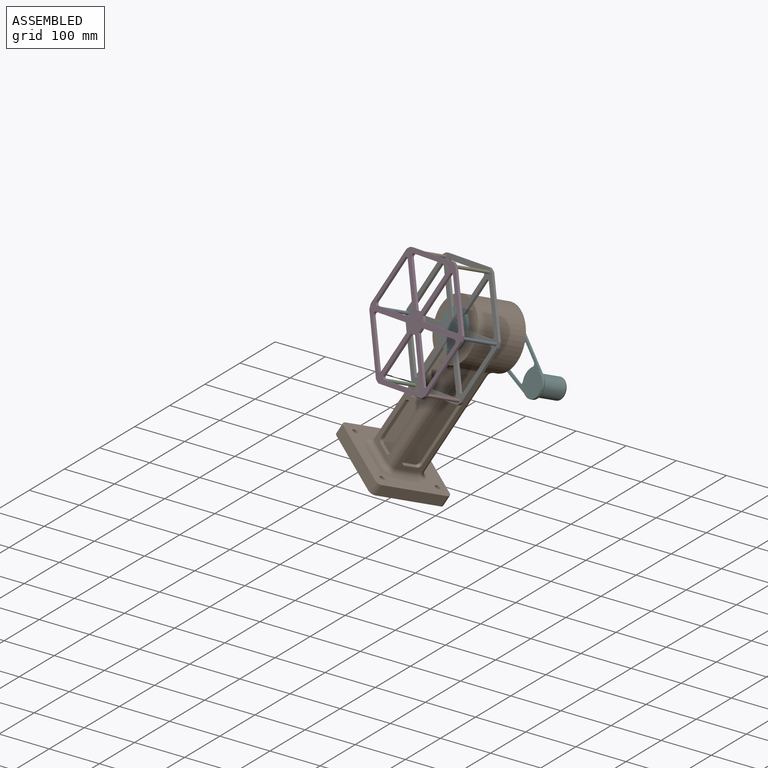
[diagram: assembled view]
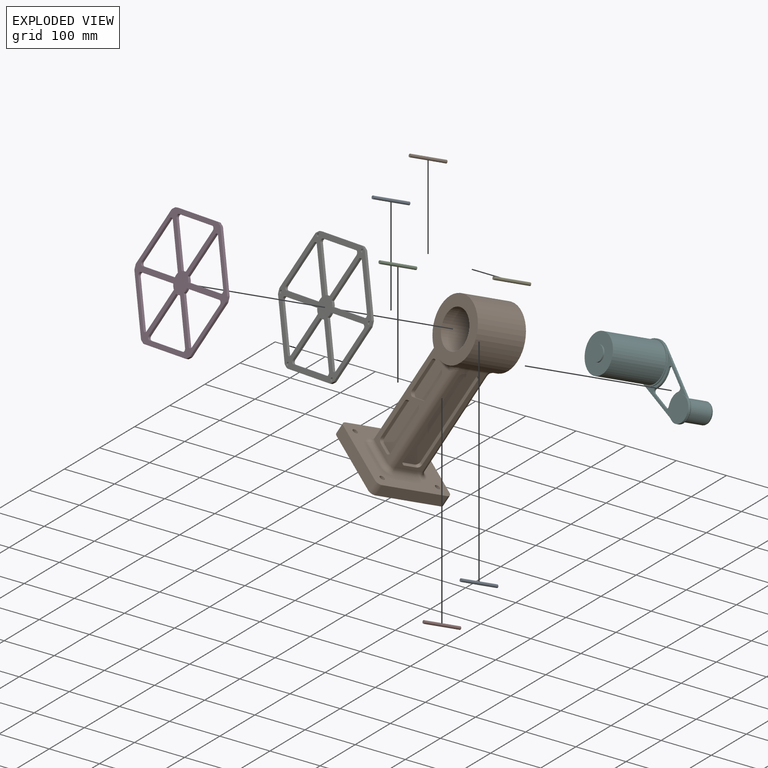
[diagram: exploded view]
GUIDED TOUR — MATED ASSEMBLY (Onshape document 767da942addccef16453a01e, AutoMate assembly 767da942addccef16453a01e_7ce4f26d298b51eed7ec63a7_d945d2391b76b32ae4764d53_default)

This assembly has 10 components, labeled P0..P9 below (a component is one placed occurrence of a part; the same part can appear more than once), held together by 9 mates. A mate is a constraint between two components; its type names the relative motion it leaves free:
  FASTENED — locks the two components together rigidly (no relative motion),
  REVOLUTE — leaves rotation about the listed axis free (a hinge),
  SLIDER — leaves translation along the listed axis free.
Axis/direction vectors are unit vectors and 'through' points are millimeter coordinates, both in the assembly's world frame.

MATES
  1. SLIDER "Gleiter 1": P5 <-> P9, axis (0.362, 0.853, -0.375) through (358.36, -244.52, -97.20) mm
  2. REVOLUTE "Drehen 1": P9 <-> P5, axis (0.362, 0.853, -0.375) through (358.36, -244.52, -97.20) mm
  3. FASTENED "Fest 3": P3 <-> P1, direction (0.362, 0.853, -0.375) through (252.69, -291.16, 41.24) mm
  4. FASTENED "Fest 2": P4 <-> P3, direction (-0.362, -0.853, 0.375) through (369.22, -332.29, 60.03) mm
  5. FASTENED "Fest 5": P3 <-> P8, direction (0.362, 0.853, -0.375) through (428.00, -396.63, -29.59) mm
  6. FASTENED "Fest 4": P3 <-> P7, direction (0.362, 0.853, -0.375) through (370.25, -419.84, -137.99) mm
  7. FASTENED "Fest 6": P3 <-> P2, direction (0.362, 0.853, -0.375) through (253.71, -378.71, -156.78) mm
  8. FASTENED "Fest 1": P0 <-> P3, direction (-0.362, -0.853, 0.375) through (194.93, -314.37, -67.16) mm
  9. FASTENED "Fest 7": P8 <-> P6, direction (0.362, 0.853, -0.375) through (455.49, -331.77, -58.12) mm

ASSEMBLY ORDER
  1. P9 — the base component [order heuristic]
  2. P5 — core [order heuristic]
  3. P6 [order verified]
  4. P8 [order verified]
  5. P7 [order verified]
  6. P2 [order verified]
  7. P0 [order verified]
  8. P1 [order verified]
  9. P4 [order verified]
  10. P3 [order verified]
(P6 verified with a relaxed clearance tolerance: the source model stores slight part interference there.)
Order-tag legend:
  [order verified] — this step's position reverses a verified removal order: the component was checked to insert without passing through the ones already placed.
  [order heuristic] — the first 2 components form the assembly's core: parts whose collision-free extraction could not be verified, listed in mate-graph order.

Of the 10 components, 8 carry the full construction recipe — the FeatureScript program that regenerates the part's solid from scratch; the rest are supplied as boundary geometry only.
Each toured component is shown spotlighted twice — in the assembled view, then in the exploded view, where a leader line traces a displaced component back to its assembled socket (saturated green if recipe-attached, orange if geometry-only; every other component desaturated gray) — followed by its recipe or geometry summary and the mates that hold it.
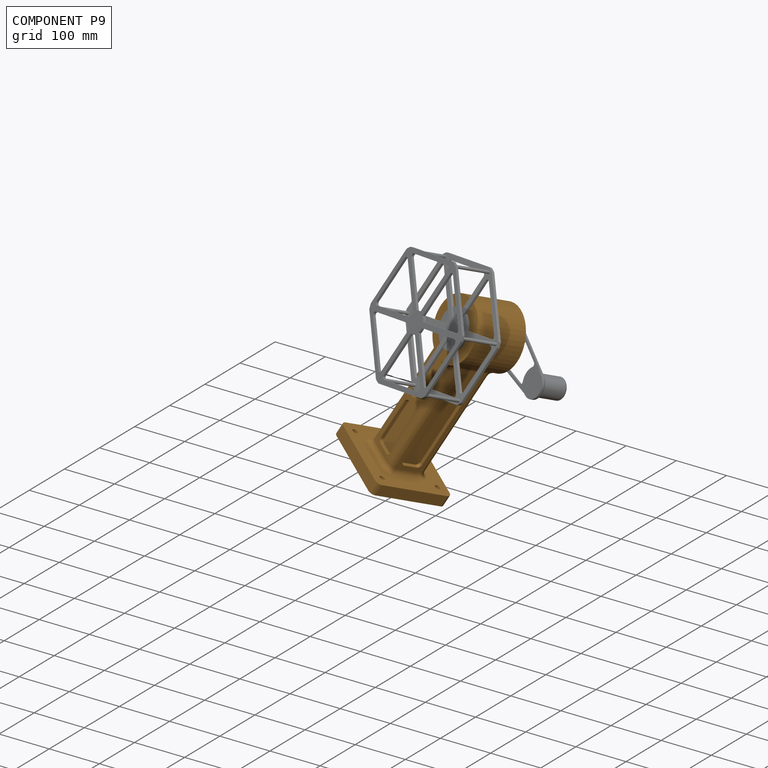
[diagram: component P9 — assembled]
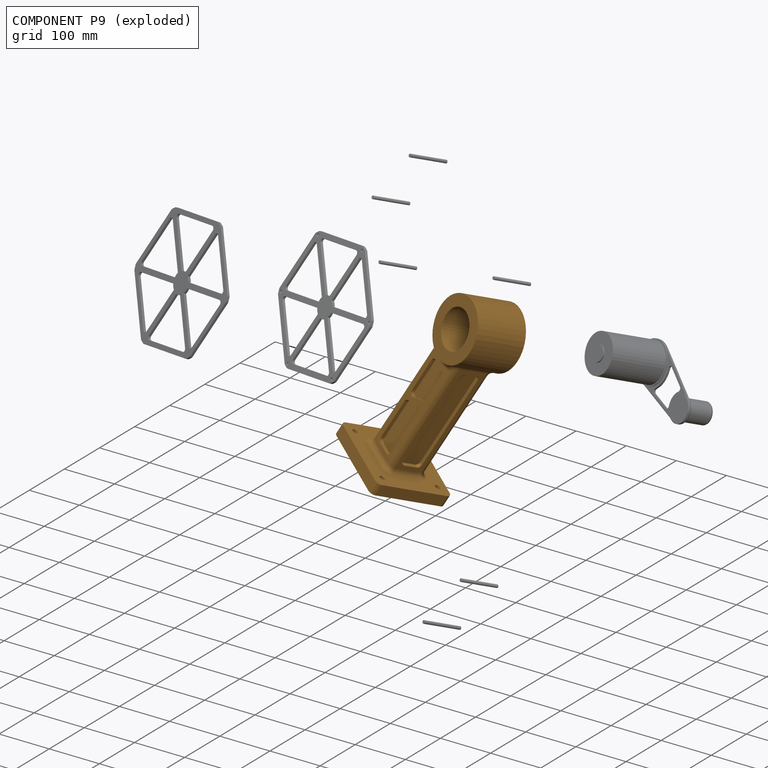
[diagram: component P9 — exploded]
COMPONENT P9 — geometry summary (no construction recipe available for this part):
  bounding box: 361.4 x 155.0 x 155.0 mm
  B-rep topology: 1 solid, 96 faces, 492 edges
  volume: 2245183 mm^3 (26% of its bounding box)
  symmetry: mirror-symmetric across its y mid-plane
Held by: SLIDER mate "Gleiter 1" to P5; REVOLUTE mate "Drehen 1" to P5.
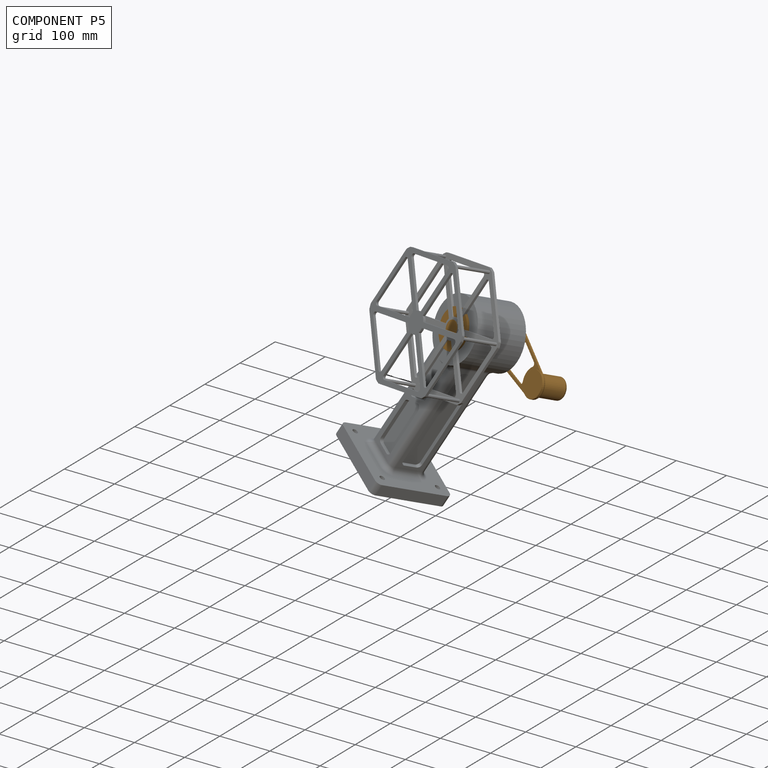
[diagram: component P5 — assembled]
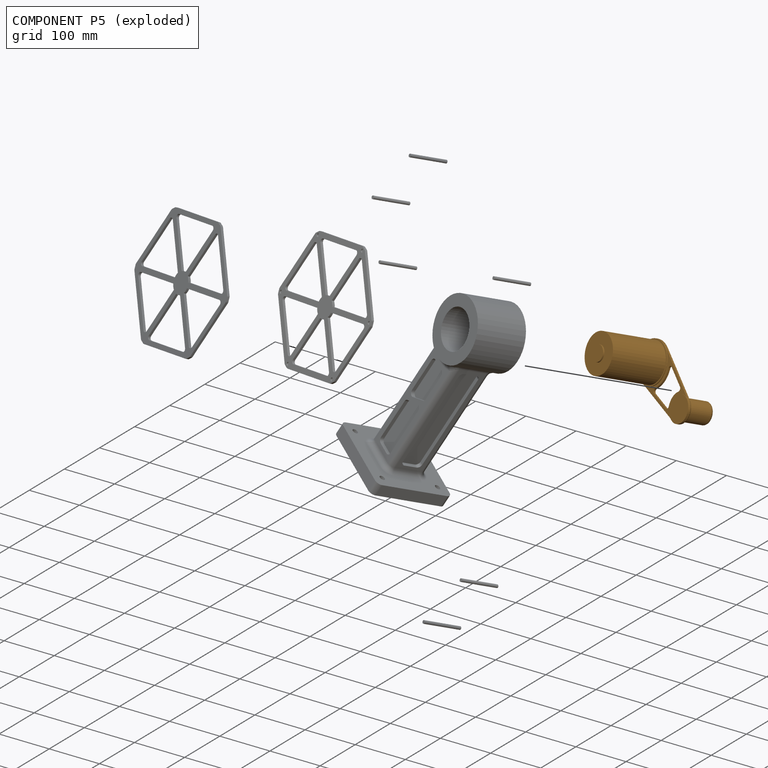
[diagram: component P5 — exploded]
COMPONENT P5 — geometry summary (no construction recipe available for this part):
  bounding box: 185.4 x 170.5 x 86.6 mm
  B-rep topology: 1 solid, 29 faces, 136 edges
  volume: 608382 mm^3 (22% of its bounding box)
  symmetry: mirror-symmetric across its z mid-plane
Held by: SLIDER mate "Gleiter 1" to P9; REVOLUTE mate "Drehen 1" to P9.
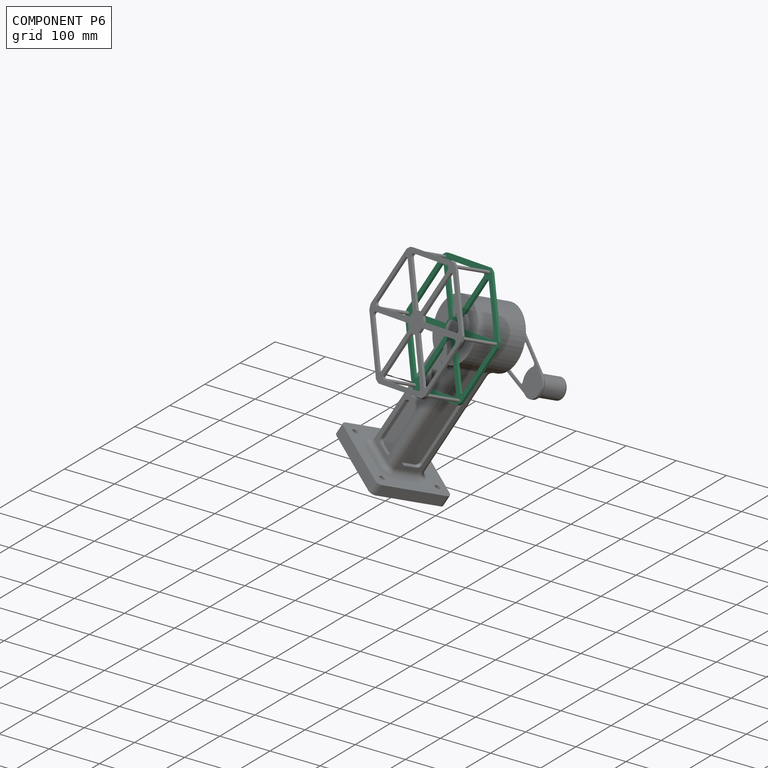
[diagram: component P6 — assembled]
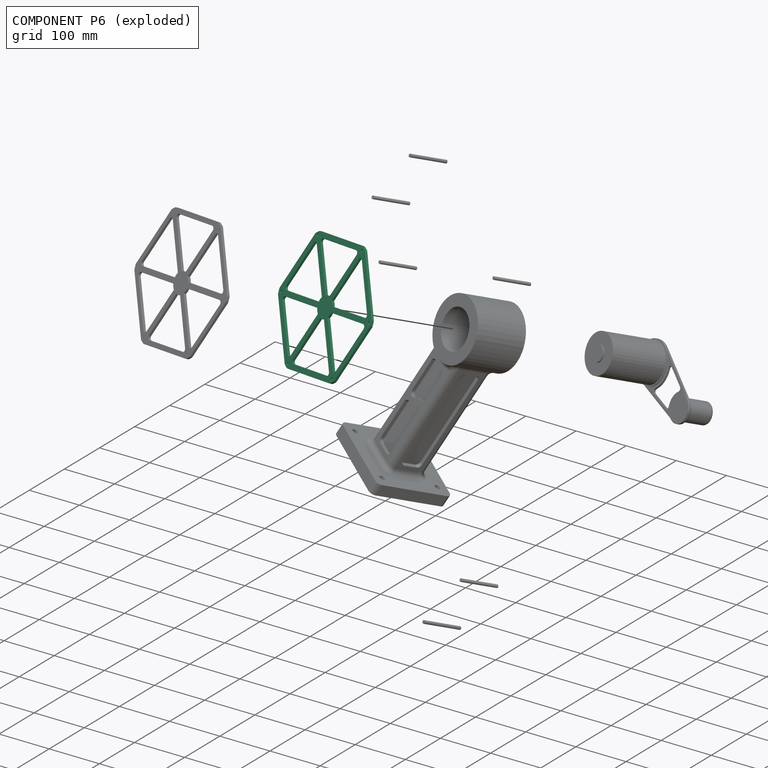
[diagram: component P6 — exploded]
COMPONENT P6 — recipe-attached (CADFS 00651218, mesh-verified: the recipe's output STEP matches this component's geometry to below the mesh-comparison resolution (tessellation chordal tolerance ~0.525 mm)).
Held by: FASTENED mate "Fest 7" to P8.
Construction recipe (FeatureScript — the CAD program that rebuilds this solid; sketch coordinates are in the units given by the * unit suffixes, e.g. mm):

FeatureScript 1511;
import(path : "onshape/std/geometry.fs", version : "1511.0");
import(path : "onshape/std/common.fs", version : "1511.0");
const mm = millimeter;
const VERTEX = EntityType.VERTEX;
const EDGE = EntityType.EDGE;
const FACE = EntityType.FACE;
const BODY = EntityType.BODY;
function v(x, y){return vector(x, y);}
function OD(order){return orderDisambiguation(order);}
function OSD(set){return originalSetDisambiguation(set);}
function TD(topology){return topologyDisambiguation(topology);}
function TDD(query){return trueDependencyDisambiguation(query);}
function sQuery(a, b, c) {return sketchEntityQuery(a, b, c);}

annotation { "Feature Type Name" : "Feature", "Feature Type Description" : "" }
export const myFeature = defineFeature(function(context is Context, id is Id, definition is map)
    precondition{}
    {
        {
            var Q0;
            Q0=qCreatedBy(makeId("Top.planeOp"),FACE);
            var sketch = newSketch(context, id + "F0", { "sketchPlane" : qUnion([Q0])});
            skLineSegment(sketch, "E0", {"start": v(0, 0) * mm, "end": v(-20, 0) * mm, "construction": true});
            skLineSegment(sketch, "E1", {"start": v(0, 0) * mm, "end": v(20, 0) * mm, "construction": true});
            skLineSegment(sketch, "E2", {"start": v(0, 0) * mm, "end": v(-10, -17.32) * mm, "construction": true});
            skLineSegment(sketch, "E3", {"start": v(0, 0) * mm, "end": v(10, 17.32) * mm, "construction": true});
            skLineSegment(sketch, "E4", {"start": v(0, 0) * mm, "end": v(-10, 17.32) * mm, "construction": true});
            skLineSegment(sketch, "E5", {"start": v(-10, 17.32) * mm, "end": v(-60, 103.92) * mm, "construction": true});
            skLineSegment(sketch, "E6", {"start": v(-10, -17.32) * mm, "end": v(-59.68, -103.37) * mm, "construction": true});
            skLineSegment(sketch, "E7", {"start": v(-20, 0) * mm, "end": v(-119.36, 0) * mm, "construction": true});
            skLineSegment(sketch, "E8", {"start": v(10, -17.32) * mm, "end": v(60, -103.92) * mm, "construction": true});
            skLineSegment(sketch, "E9", {"start": v(20, 0) * mm, "end": v(120, 0) * mm, "construction": true});
            skLineSegment(sketch, "E10", {"start": v(10, 17.32) * mm, "end": v(60, 103.92) * mm, "construction": true});
            skLineSegment(sketch, "E11", {"start": v(0, 0) * mm, "end": v(10, -17.32) * mm, "construction": true});
            skPoint(sketch, "E12.center", {"position": v(0, 0) * mm});
            skLineSegment(sketch, "E13", {"start": v(-119.36, 0) * mm, "end": v(-119.36, 5) * mm});
            skLineSegment(sketch, "E14", {"start": v(-119.36, 0) * mm, "end": v(-119.36, -5) * mm});
            skLineSegment(sketch, "E15.1.0", {"start": v(-59.68, -103.37) * mm, "end": v(-64.01, -100.87) * mm});
            skLineSegment(sketch, "E15.1.1", {"start": v(-59.68, -103.37) * mm, "end": v(-55.35, -105.87) * mm});
            skLineSegment(sketch, "E15.2.0", {"start": v(59.68, -103.37) * mm, "end": v(55.35, -105.87) * mm});
            skLineSegment(sketch, "E15.2.1", {"start": v(59.68, -103.37) * mm, "end": v(64.01, -100.87) * mm});
            skLineSegment(sketch, "E15.3.0", {"start": v(119.36, 0) * mm, "end": v(119.36, -5) * mm});
            skLineSegment(sketch, "E15.3.1", {"start": v(119.36, 0) * mm, "end": v(119.36, 5) * mm});
            skLineSegment(sketch, "E15.4.0", {"start": v(59.68, 103.37) * mm, "end": v(64.01, 100.87) * mm});
            skLineSegment(sketch, "E15.4.1", {"start": v(59.68, 103.37) * mm, "end": v(55.35, 105.87) * mm});
            skLineSegment(sketch, "E15.5.0", {"start": v(-59.68, 103.37) * mm, "end": v(-55.35, 105.87) * mm});
            skLineSegment(sketch, "E15.5.1", {"start": v(-59.68, 103.37) * mm, "end": v(-64.01, 100.87) * mm});
            skLineSegment(sketch, "E16", {"start": v(-119.36, 5) * mm, "end": v(-19.36, 5) * mm});
            skLineSegment(sketch, "E17", {"start": v(-119.36, -5) * mm, "end": v(-19.36, -5) * mm});
            skLineSegment(sketch, "E18", {"start": v(-64.01, -100.87) * mm, "end": v(-14.01, -14.27) * mm});
            skLineSegment(sketch, "E19", {"start": v(55.35, -105.87) * mm, "end": v(5.35, -19.27) * mm});
            skLineSegment(sketch, "E20", {"start": v(64.01, -100.87) * mm, "end": v(14.01, -14.27) * mm});
            skLineSegment(sketch, "E21", {"start": v(119.36, -5) * mm, "end": v(19.36, -5) * mm});
            skLineSegment(sketch, "E22", {"start": v(119.36, 5) * mm, "end": v(19.36, 5) * mm});
            skLineSegment(sketch, "E23", {"start": v(64.01, 100.87) * mm, "end": v(14.01, 14.27) * mm});
            skLineSegment(sketch, "E24", {"start": v(55.35, 105.87) * mm, "end": v(5.35, 19.27) * mm});
            skLineSegment(sketch, "E25", {"start": v(-64.01, 100.87) * mm, "end": v(-14.01, 14.27) * mm});
            skLineSegment(sketch, "E26", {"start": v(-55.35, 105.87) * mm, "end": v(-5.35, 19.27) * mm});
            skLineSegment(sketch, "E27", {"start": v(-55.35, -105.87) * mm, "end": v(-5.35, -19.27) * mm});
            skLineSegment(sketch, "E28", {"start": v(-119.36, -5) * mm, "end": v(-64.01, -100.87) * mm});
            skLineSegment(sketch, "E29", {"start": v(-55.35, -105.87) * mm, "end": v(55.35, -105.87) * mm});
            skLineSegment(sketch, "E30", {"start": v(64.01, -100.87) * mm, "end": v(119.36, -5) * mm});
            skLineSegment(sketch, "E31", {"start": v(-119.36, 5) * mm, "end": v(-64.01, 100.87) * mm});
            skLineSegment(sketch, "E32", {"start": v(-55.35, 105.87) * mm, "end": v(55.35, 105.87) * mm});
            skLineSegment(sketch, "E33", {"start": v(64.01, 100.87) * mm, "end": v(119.36, 5) * mm});
            skLineSegment(sketch, "E34.0", {"start": v(-55.35, 115.87) * mm, "end": v(55.35, 115.87) * mm});
            skLineSegment(sketch, "E35.0", {"start": v(-128.03, 10) * mm, "end": v(-72.67, 105.87) * mm});
            skLineSegment(sketch, "E36.0", {"start": v(-128.03, -10) * mm, "end": v(-72.67, -105.87) * mm});
            skLineSegment(sketch, "E37.0", {"start": v(-55.35, -115.87) * mm, "end": v(55.35, -115.87) * mm});
            skLineSegment(sketch, "E38.0", {"start": v(72.67, 105.87) * mm, "end": v(128.03, 10) * mm});
            skLineSegment(sketch, "E39.0", {"start": v(72.67, -105.87) * mm, "end": v(128.03, -10) * mm});
            skLineSegment(sketch, "E40", {"start": v(-55.35, -105.87) * mm, "end": v(-60.58, -114.92) * mm, "construction": true});
            skLineSegment(sketch, "E41", {"start": v(-64.01, -100.87) * mm, "end": v(-71.06, -113.07) * mm, "construction": true});
            skLineSegment(sketch, "E42", {"start": v(-72.67, -105.87) * mm, "end": v(-69.79, -110.87) * mm});
            skLineSegment(sketch, "E43", {"start": v(-55.35, -115.87) * mm, "end": v(-61.13, -115.87) * mm});
            skLineSegment(sketch, "E44", {"start": v(-61.13, -115.87) * mm, "end": v(-69.79, -110.87) * mm});
            skLineSegment(sketch, "E45", {"start": v(55.35, -105.87) * mm, "end": v(63.7, -120.32) * mm, "construction": true});
            skLineSegment(sketch, "E46", {"start": v(64.01, -100.87) * mm, "end": v(72.67, -115.87) * mm, "construction": true});
            skLineSegment(sketch, "E47", {"start": v(119.36, -5) * mm, "end": v(134.72, -5) * mm, "construction": true});
            skLineSegment(sketch, "E48", {"start": v(119.36, 5) * mm, "end": v(137.91, 5) * mm, "construction": true});
            skLineSegment(sketch, "E49", {"start": v(55.35, 105.87) * mm, "end": v(62.63, 118.48) * mm, "construction": true});
            skLineSegment(sketch, "E50", {"start": v(64.01, 100.87) * mm, "end": v(72.34, 115.3) * mm, "construction": true});
            skLineSegment(sketch, "E51", {"start": v(-55.35, 105.87) * mm, "end": v(-62.75, 118.7) * mm, "construction": true});
            skLineSegment(sketch, "E52", {"start": v(-64.01, 100.87) * mm, "end": v(-72.33, 115.27) * mm, "construction": true});
            skLineSegment(sketch, "E53", {"start": v(-119.36, -5) * mm, "end": v(-137.37, -5) * mm, "construction": true});
            skLineSegment(sketch, "E54", {"start": v(-119.36, 5) * mm, "end": v(-137.37, 5) * mm, "construction": true});
            skLineSegment(sketch, "E55", {"start": v(-128.03, 10) * mm, "end": v(-130.91, 5) * mm});
            skLineSegment(sketch, "E56", {"start": v(-128.03, -10) * mm, "end": v(-130.91, -5) * mm});
            skLineSegment(sketch, "E57", {"start": v(-130.91, 5) * mm, "end": v(-130.91, -5) * mm});
            skLineSegment(sketch, "E58", {"start": v(55.35, -115.87) * mm, "end": v(61.13, -115.87) * mm});
            skLineSegment(sketch, "E59", {"start": v(72.67, -105.87) * mm, "end": v(69.79, -110.87) * mm});
            skLineSegment(sketch, "E60", {"start": v(61.13, -115.87) * mm, "end": v(69.79, -110.87) * mm});
            skLineSegment(sketch, "E61", {"start": v(128.03, -10) * mm, "end": v(130.91, -5) * mm});
            skLineSegment(sketch, "E62", {"start": v(128.03, 10) * mm, "end": v(130.91, 5) * mm});
            skLineSegment(sketch, "E63", {"start": v(130.91, 5) * mm, "end": v(130.91, -5) * mm});
            skLineSegment(sketch, "E64", {"start": v(55.35, 115.87) * mm, "end": v(61.13, 115.87) * mm});
            skLineSegment(sketch, "E65", {"start": v(61.13, 115.87) * mm, "end": v(69.79, 110.87) * mm});
            skLineSegment(sketch, "E66", {"start": v(69.79, 110.87) * mm, "end": v(72.67, 105.87) * mm});
            skLineSegment(sketch, "E67", {"start": v(-55.35, 115.87) * mm, "end": v(-61.13, 115.87) * mm});
            skLineSegment(sketch, "E68", {"start": v(-61.13, 115.87) * mm, "end": v(-69.79, 110.87) * mm});
            skLineSegment(sketch, "E69", {"start": v(-69.79, 110.87) * mm, "end": v(-72.67, 105.87) * mm});
            skLineSegment(sketch, "E70", {"start": v(-64.01, -100.87) * mm, "end": v(-61.13, -115.87) * mm, "construction": true});
            skLineSegment(sketch, "E71", {"start": v(-69.79, -110.87) * mm, "end": v(-55.35, -105.87) * mm, "construction": true});
            skPoint(sketch, "E72", {"position": v(-62.57, -108.37) * mm});
            skCircle(sketch, "E73", {"center": v(-62.57, -108.37) * mm, "radius": 3 * mm});
            skCircle(sketch, "E74.1.0", {"center": v(62.57, -108.37) * mm, "radius": 3 * mm});
            skCircle(sketch, "E74.2.0", {"center": v(125.14, 0) * mm, "radius": 3 * mm});
            skCircle(sketch, "E74.3.0", {"center": v(62.57, 108.37) * mm, "radius": 3 * mm});
            skCircle(sketch, "E74.4.0", {"center": v(-62.57, 108.37) * mm, "radius": 3 * mm});
            skCircle(sketch, "E74.5.0", {"center": v(-125.14, 0) * mm, "radius": 3 * mm});
            skPoint(sketch, "E75.start.orphan", {"position": v(-15.13, -5.38) * mm});
            skPoint(sketch, "E76.start.orphan", {"position": v(-12.22, -10.41) * mm});
            skPoint(sketch, "E77.orphan", {"position": v(18.59, 7.38) * mm});
            skCircle(sketch, "E78", {"center": v(0, 0) * mm, "radius": 20 * mm});
            skCircle(sketch, "E79", {"center": v(0, 0) * mm, "radius": 15 * mm});
            skSolve(sketch);
        }
        {
            var Q0;
            Q0=makeQuery(id+"F0.imprint","IMPRINT",FACE,{"disambiguationData":[TD([[makeQuery(id+"F0.imprint","IMPRINT",EDGE,{"derivedFrom":sQuery(id+"F0.wireOp",EDGE,"E13")}),1.0]])]});
            var Q1;
            {var subQ9=sQuery(id+"F0.wireOp",EDGE,"HfZjKeIH-J2he-E3ts-KsWi-W7cin7nE6oE4");Q1=makeQuery(id+"F0.imprint","IMPRINT",FACE,{"disambiguationData":[TD([[makeQuery(id+"F0.imprint","IMPRINT",EDGE,{"derivedFrom":subQ9}),1.0]])]});}
            var Q2;
            Q2=makeQuery(id+"F0.imprint","IMPRINT",FACE,{"disambiguationData":[TD([[makeQuery(id+"F0.imprint","IMPRINT",EDGE,{"derivedFrom":sQuery(id+"F0.wireOp",EDGE,"E15.5.0")}),-1.0]])]});
            var Q3;
            Q3=makeQuery(id+"F0.imprint","IMPRINT",FACE,{"disambiguationData":[TD([[makeQuery(id+"F0.imprint","IMPRINT",EDGE,{"derivedFrom":sQuery(id+"F0.wireOp",EDGE,"E15.4.0")}),-1.0]])]});
            var Q4;
            Q4=makeQuery(id+"F0.imprint","IMPRINT",FACE,{"disambiguationData":[TD([[makeQuery(id+"F0.imprint","IMPRINT",EDGE,{"derivedFrom":sQuery(id+"F0.wireOp",EDGE,"E15.3.0")}),-1.0]])]});
            var Q5;
            Q5=makeQuery(id+"F0.imprint","IMPRINT",FACE,{"disambiguationData":[TD([[makeQuery(id+"F0.imprint","IMPRINT",EDGE,{"derivedFrom":sQuery(id+"F0.wireOp",EDGE,"E15.2.0")}),-1.0]])]});
            var Q6;
            Q6=makeQuery(id+"F0.imprint","IMPRINT",FACE,{"disambiguationData":[TD([[makeQuery(id+"F0.imprint","IMPRINT",EDGE,{"derivedFrom":sQuery(id+"F0.wireOp",EDGE,"E15.1.0")}),-1.0]])]});
            var Q7;
            Q7=makeQuery(id+"F0.imprint","IMPRINT",FACE,{"disambiguationData":[TD([[makeQuery(id+"F0.imprint","IMPRINT",EDGE,{"derivedFrom":sQuery(id+"F0.wireOp",EDGE,"E13")}),-1.0]])]});
            extrude(context, id + "F1", {"entities" : qUnion([Q0, Q1, Q2, Q3, Q4, Q5, Q6, Q7]), "depth" : 5 * mm, "offsetDistance" : 25 * mm});
        }
        {
            var Q0;
            Q0=makeQuery(id+"F0.imprint","IMPRINT",FACE,{"disambiguationData":[TD([[makeQuery(id+"F0.imprint","IMPRINT",EDGE,{"derivedFrom":sQuery(id+"F0.wireOp",EDGE,"E74.5.0")}),1.0]])]});
            var Q1;
            Q1=makeQuery(id+"F0.imprint","IMPRINT",FACE,{"disambiguationData":[TD([[makeQuery(id+"F0.imprint","IMPRINT",EDGE,{"derivedFrom":sQuery(id+"F0.wireOp",EDGE,"E74.4.0")}),1.0]])]});
            var Q2;
            Q2=makeQuery(id+"F0.imprint","IMPRINT",FACE,{"disambiguationData":[TD([[makeQuery(id+"F0.imprint","IMPRINT",EDGE,{"derivedFrom":sQuery(id+"F0.wireOp",EDGE,"E74.3.0")}),1.0]])]});
            var Q3;
            Q3=makeQuery(id+"F0.imprint","IMPRINT",FACE,{"disambiguationData":[TD([[makeQuery(id+"F0.imprint","IMPRINT",EDGE,{"derivedFrom":sQuery(id+"F0.wireOp",EDGE,"E74.2.0")}),1.0]])]});
            var Q4;
            Q4=makeQuery(id+"F0.imprint","IMPRINT",FACE,{"disambiguationData":[TD([[makeQuery(id+"F0.imprint","IMPRINT",EDGE,{"derivedFrom":sQuery(id+"F0.wireOp",EDGE,"E74.1.0")}),1.0]])]});
            var Q5;
            Q5=makeQuery(id+"F0.imprint","IMPRINT",FACE,{"disambiguationData":[TD([[makeQuery(id+"F0.imprint","IMPRINT",EDGE,{"derivedFrom":sQuery(id+"F0.wireOp",EDGE,"E73")}),1.0]])]});
            extrude(context, id + "F2", {"entities" : qUnion([Q0, Q1, Q2, Q3, Q4, Q5]), "operationType" : NewBodyOperationType.ADD, "depth" : 2 * mm, "offsetDistance" : 25 * mm});
        }
        {
            var Q0;
            Q0=makeQuery(id+"F1.opExtrude","SWEPT_EDGE",EDGE,{"disambiguationData":[OSD([sQuery(id+"F0.wireOp",EDGE,"E55"),sQuery(id+"F0.wireOp",EDGE,"E57")])]});
            var Q1;
            Q1=makeQuery(id+"F1.opExtrude","SWEPT_EDGE",EDGE,{"disambiguationData":[OSD([sQuery(id+"F0.wireOp",EDGE,"E56"),sQuery(id+"F0.wireOp",EDGE,"E57")])]});
            var Q2;
            Q2=makeQuery(id+"F1.opExtrude","SWEPT_EDGE",EDGE,{"disambiguationData":[OSD([sQuery(id+"F0.wireOp",EDGE,"E42"),sQuery(id+"F0.wireOp",EDGE,"E44")])]});
            var Q3;
            Q3=makeQuery(id+"F1.opExtrude","SWEPT_EDGE",EDGE,{"disambiguationData":[OSD([sQuery(id+"F0.wireOp",EDGE,"E43"),sQuery(id+"F0.wireOp",EDGE,"E44")])]});
            var Q4;
            Q4=makeQuery(id+"F1.opExtrude","SWEPT_EDGE",EDGE,{"disambiguationData":[OSD([sQuery(id+"F0.wireOp",EDGE,"E58"),sQuery(id+"F0.wireOp",EDGE,"E60")])]});
            var Q5;
            Q5=makeQuery(id+"F1.opExtrude","SWEPT_EDGE",EDGE,{"disambiguationData":[OSD([sQuery(id+"F0.wireOp",EDGE,"E59"),sQuery(id+"F0.wireOp",EDGE,"E60")])]});
            var Q6;
            Q6=makeQuery(id+"F1.opExtrude","SWEPT_EDGE",EDGE,{"disambiguationData":[OSD([sQuery(id+"F0.wireOp",EDGE,"E61"),sQuery(id+"F0.wireOp",EDGE,"E63")])]});
            var Q7;
            Q7=makeQuery(id+"F1.opExtrude","SWEPT_EDGE",EDGE,{"disambiguationData":[OSD([sQuery(id+"F0.wireOp",EDGE,"E62"),sQuery(id+"F0.wireOp",EDGE,"E63")])]});
            var Q8;
            Q8=makeQuery(id+"F1.opExtrude","SWEPT_EDGE",EDGE,{"disambiguationData":[OSD([sQuery(id+"F0.wireOp",EDGE,"E65"),sQuery(id+"F0.wireOp",EDGE,"E66")])]});
            var Q9;
            Q9=makeQuery(id+"F1.opExtrude","SWEPT_EDGE",EDGE,{"disambiguationData":[OSD([sQuery(id+"F0.wireOp",EDGE,"E64"),sQuery(id+"F0.wireOp",EDGE,"E65")])]});
            var Q10;
            Q10=makeQuery(id+"F1.opExtrude","SWEPT_EDGE",EDGE,{"disambiguationData":[OSD([sQuery(id+"F0.wireOp",EDGE,"E67"),sQuery(id+"F0.wireOp",EDGE,"E68")])]});
            var Q11;
            Q11=makeQuery(id+"F1.opExtrude","SWEPT_EDGE",EDGE,{"disambiguationData":[OSD([sQuery(id+"F0.wireOp",EDGE,"E68"),sQuery(id+"F0.wireOp",EDGE,"E69")])]});
            fillet(context, id + "F3", {"entities" : qUnion([Q0, Q1, Q2, Q3, Q4, Q5, Q6, Q7, Q8, Q9, Q10, Q11]), "radius" : 5 * mm, "tangentPropagation" : true, "allowEdgeOverflow" : false});
        }
        {
            var Q0;
            Q0=makeQuery(id+"F1.opExtrude","SWEPT_EDGE",EDGE,{"disambiguationData":[OSD([sQuery(id+"F0.wireOp",EDGE,"E15.5.1"),sQuery(id+"F0.wireOp",EDGE,"E25"),sQuery(id+"F0.wireOp",EDGE,"E31")])]});
            var Q1;
            Q1=makeQuery(id+"F1.opExtrude","SWEPT_EDGE",EDGE,{"disambiguationData":[OSD([sQuery(id+"F0.wireOp",EDGE,"E15.5.0"),sQuery(id+"F0.wireOp",EDGE,"E26"),sQuery(id+"F0.wireOp",EDGE,"E32")])]});
            var Q2;
            Q2=makeQuery(id+"F1.opExtrude","SWEPT_EDGE",EDGE,{"disambiguationData":[OSD([sQuery(id+"F0.wireOp",EDGE,"E15.4.1"),sQuery(id+"F0.wireOp",EDGE,"E24"),sQuery(id+"F0.wireOp",EDGE,"E32")])]});
            var Q3;
            Q3=makeQuery(id+"F1.opExtrude","SWEPT_EDGE",EDGE,{"disambiguationData":[OSD([sQuery(id+"F0.wireOp",EDGE,"E15.4.0"),sQuery(id+"F0.wireOp",EDGE,"E23"),sQuery(id+"F0.wireOp",EDGE,"E33")])]});
            var Q4;
            Q4=makeQuery(id+"F1.opExtrude","SWEPT_EDGE",EDGE,{"disambiguationData":[OSD([sQuery(id+"F0.wireOp",EDGE,"E15.3.1"),sQuery(id+"F0.wireOp",EDGE,"E22"),sQuery(id+"F0.wireOp",EDGE,"E33")])]});
            var Q5;
            Q5=makeQuery(id+"F1.opExtrude","SWEPT_EDGE",EDGE,{"disambiguationData":[OSD([sQuery(id+"F0.wireOp",EDGE,"E15.3.0"),sQuery(id+"F0.wireOp",EDGE,"E21"),sQuery(id+"F0.wireOp",EDGE,"E30")])]});
            var Q6;
            Q6=makeQuery(id+"F1.opExtrude","SWEPT_EDGE",EDGE,{"disambiguationData":[OSD([sQuery(id+"F0.wireOp",EDGE,"E15.2.1"),sQuery(id+"F0.wireOp",EDGE,"E20"),sQuery(id+"F0.wireOp",EDGE,"E30")])]});
            var Q7;
            Q7=makeQuery(id+"F1.opExtrude","SWEPT_EDGE",EDGE,{"disambiguationData":[OSD([sQuery(id+"F0.wireOp",EDGE,"E15.2.0"),sQuery(id+"F0.wireOp",EDGE,"E19"),sQuery(id+"F0.wireOp",EDGE,"E29")])]});
            var Q8;
            Q8=makeQuery(id+"F1.opExtrude","SWEPT_EDGE",EDGE,{"disambiguationData":[OSD([sQuery(id+"F0.wireOp",EDGE,"E15.1.1"),sQuery(id+"F0.wireOp",EDGE,"E27"),sQuery(id+"F0.wireOp",EDGE,"E29")])]});
            var Q9;
            Q9=makeQuery(id+"F1.opExtrude","SWEPT_EDGE",EDGE,{"disambiguationData":[OSD([sQuery(id+"F0.wireOp",EDGE,"E15.1.0"),sQuery(id+"F0.wireOp",EDGE,"E18"),sQuery(id+"F0.wireOp",EDGE,"E28")])]});
            var Q10;
            Q10=makeQuery(id+"F1.opExtrude","SWEPT_EDGE",EDGE,{"disambiguationData":[OSD([sQuery(id+"F0.wireOp",EDGE,"E14"),sQuery(id+"F0.wireOp",EDGE,"E17"),sQuery(id+"F0.wireOp",EDGE,"E28")])]});
            var Q11;
            Q11=makeQuery(id+"F1.opExtrude","SWEPT_EDGE",EDGE,{"disambiguationData":[OSD([sQuery(id+"F0.wireOp",EDGE,"E13"),sQuery(id+"F0.wireOp",EDGE,"E16"),sQuery(id+"F0.wireOp",EDGE,"E31")])]});
            fillet(context, id + "F4", {"entities" : qUnion([Q0, Q1, Q2, Q3, Q4, Q5, Q6, Q7, Q8, Q9, Q10, Q11]), "radius" : 5 * mm, "tangentPropagation" : true, "allowEdgeOverflow" : false});
        }
        {
            var Q0;
            {var subQ0=sQuery(id+"F0.wireOp",EDGE,"E78");var subQ8=makeQuery(id+"F0.imprint","INTERSECT",VERTEX,{"derivedFrom":[sQuery(id+"F0.wireOp",EDGE,"E22"),subQ0]});Q0=makeQuery(id+"F0.imprint","IMPRINT",FACE,{"disambiguationData":[TD([[makeQuery(id+"F0.imprint","IMPRINT",EDGE,{"disambiguationData":[TD([[subQ8,-1.0]])],"derivedFrom":subQ0}),1.0]])]});}
            extrude(context, id + "F5", {"entities" : qUnion([Q0]), "operationType" : NewBodyOperationType.ADD, "depth" : 5 * mm, "offsetDistance" : 25 * mm});
        }
        {
            var Q0;
            Q0=makeQuery(id+"F0.imprint","IMPRINT",FACE,{"disambiguationData":[TD([[makeQuery(id+"F0.imprint","IMPRINT",EDGE,{"derivedFrom":sQuery(id+"F0.wireOp",EDGE,"E79")}),1.0]])]});
            extrude(context, id + "F6", {"entities" : qUnion([Q0]), "operationType" : NewBodyOperationType.ADD, "depth" : 5 * mm, "offsetDistance" : 25 * mm});
        }
        {
            var Q0;
            Q0=makeQuery(id+"F0.imprint","IMPRINT",FACE,{"disambiguationData":[TD([[makeQuery(id+"F0.imprint","IMPRINT",EDGE,{"derivedFrom":sQuery(id+"F0.wireOp",EDGE,"E79")}),1.0]])]});
            extrude(context, id + "F7", {"entities" : qUnion([Q0]), "operationType" : NewBodyOperationType.REMOVE, "depth" : 3 * mm, "offsetDistance" : 25 * mm});
        }
    });
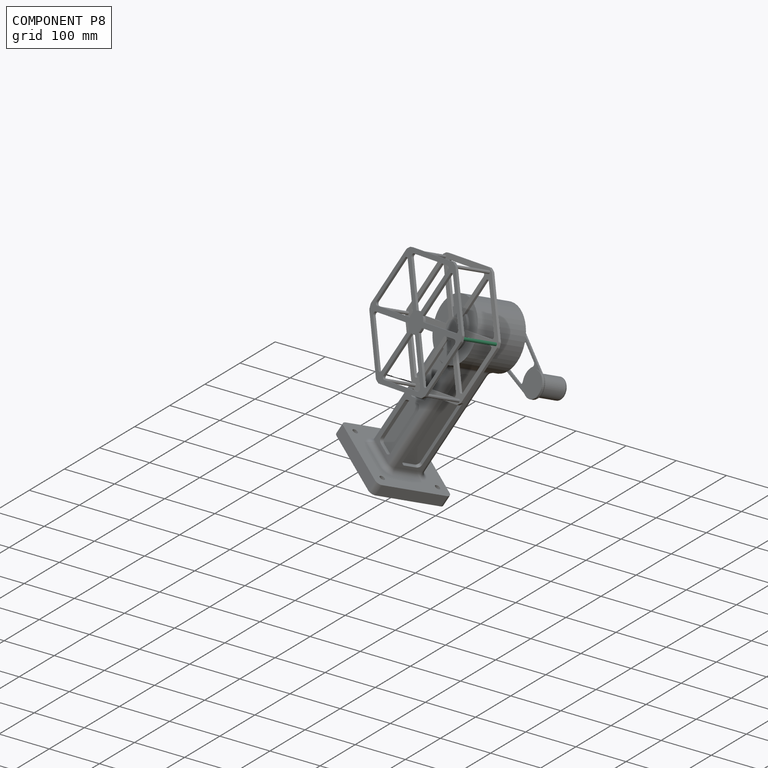
[diagram: component P8 — assembled]
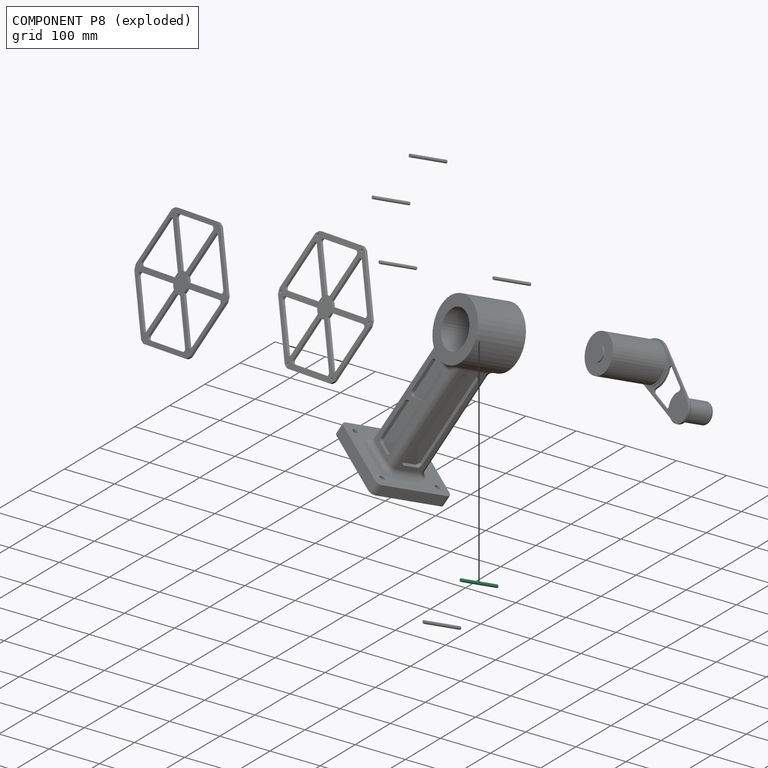
[diagram: component P8 — exploded]
COMPONENT P8 — same part as P0 (CADFS 00651217); its construction recipe is shown at P0.
Held by: FASTENED mate "Fest 5" to P3; FASTENED mate "Fest 7" to P6.
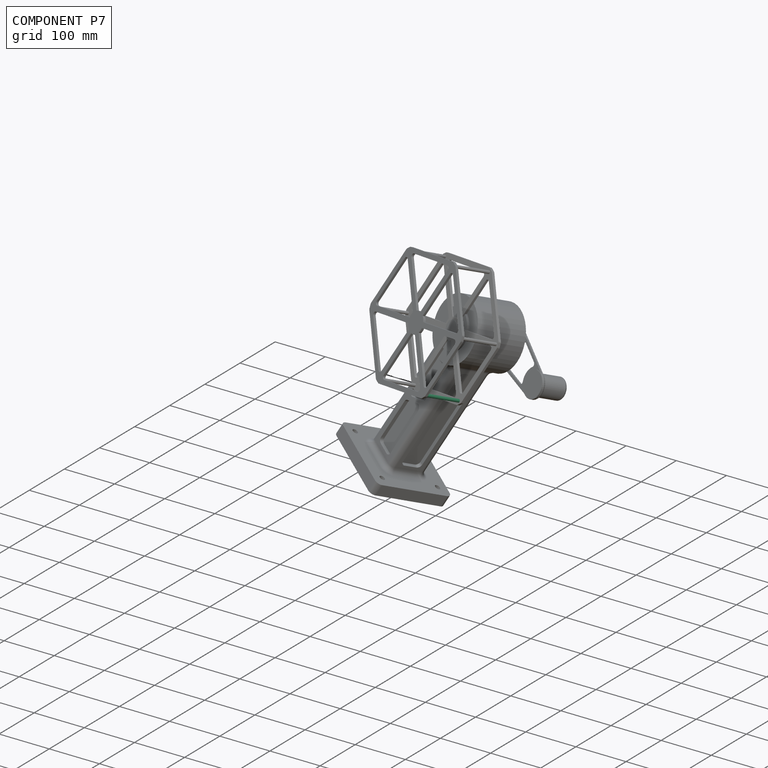
[diagram: component P7 — assembled]
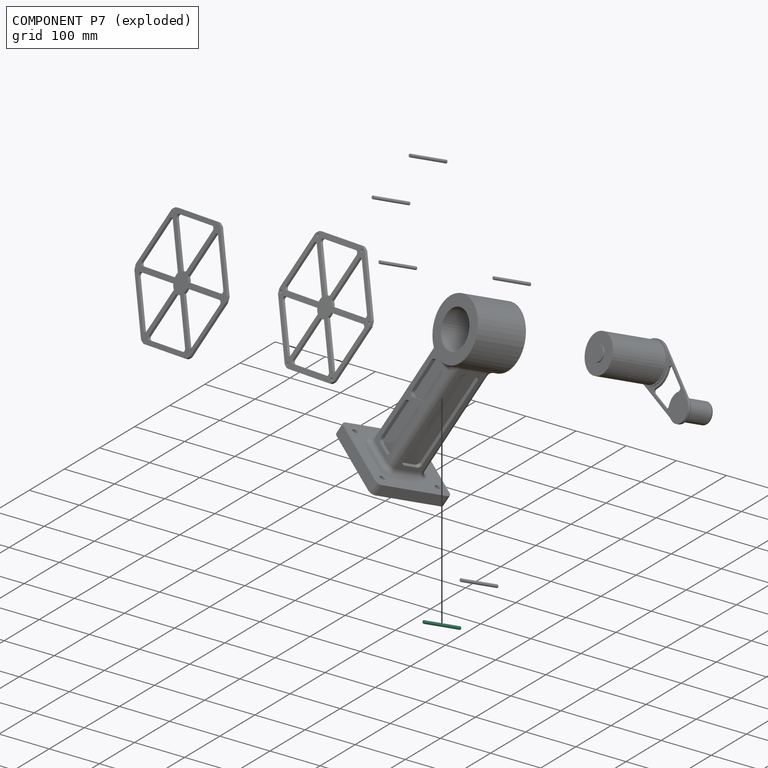
[diagram: component P7 — exploded]
COMPONENT P7 — same part as P0 (CADFS 00651217); its construction recipe is shown at P0.
Held by: FASTENED mate "Fest 4" to P3.
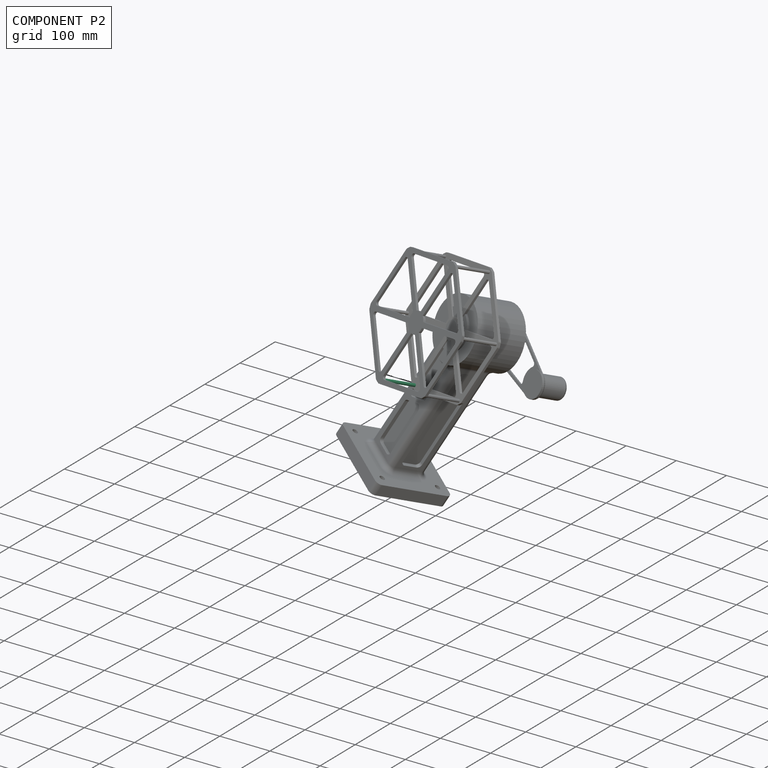
[diagram: component P2 — assembled]
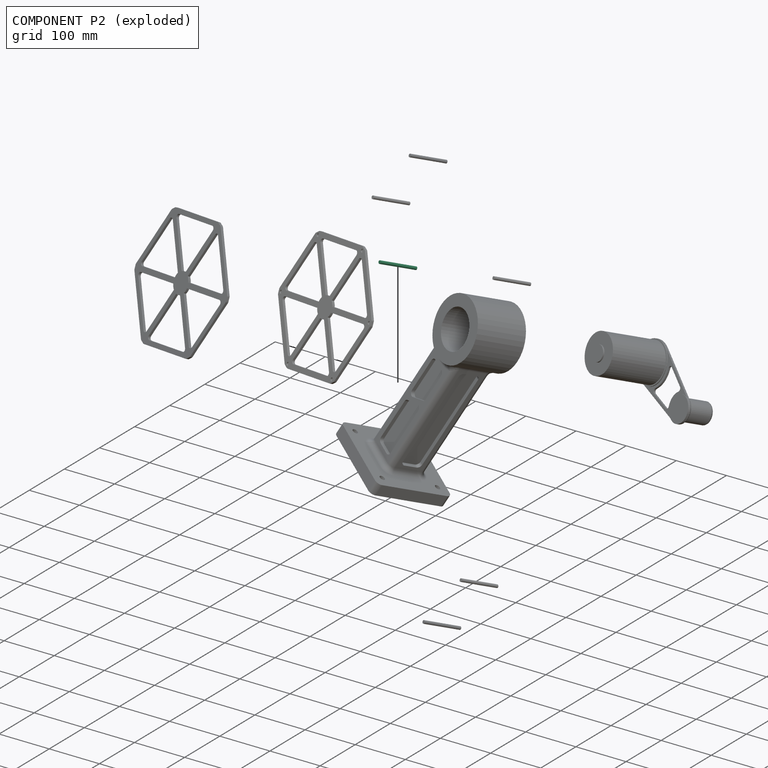
[diagram: component P2 — exploded]
COMPONENT P2 — same part as P0 (CADFS 00651217); its construction recipe is shown at P0.
Held by: FASTENED mate "Fest 6" to P3.
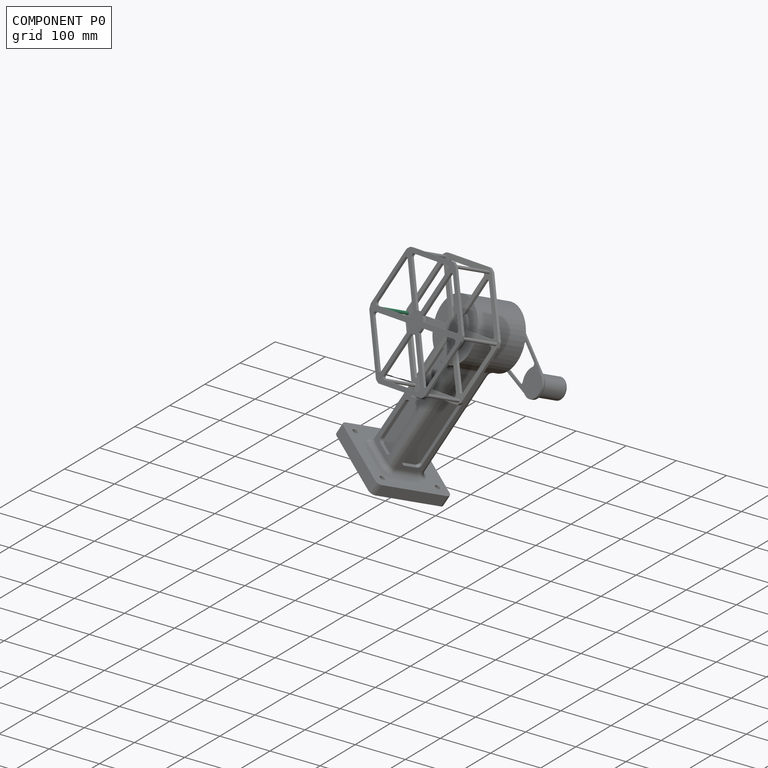
[diagram: component P0 — assembled]
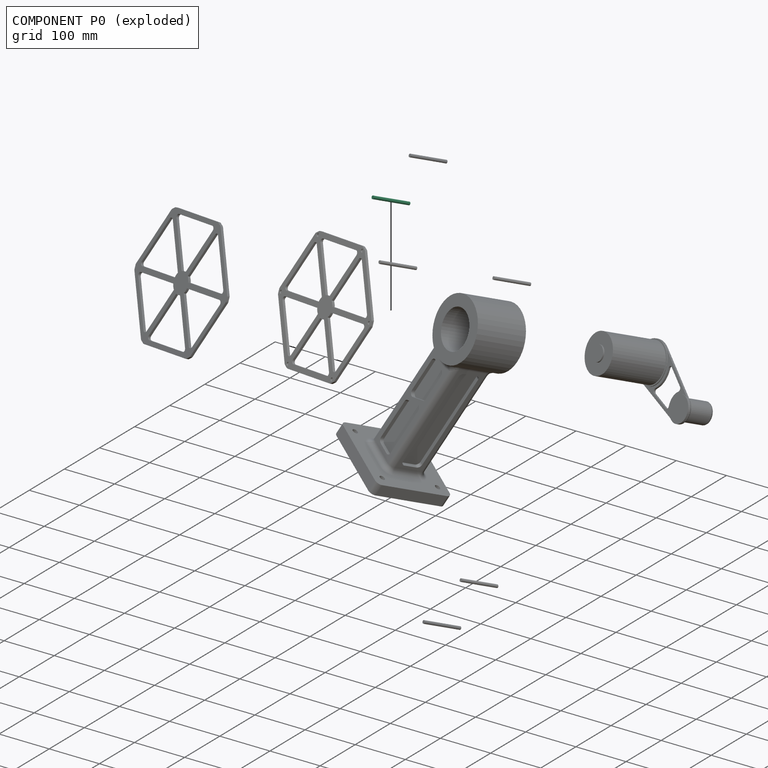
[diagram: component P0 — exploded]
COMPONENT P0 — recipe-attached (CADFS 00651217, mesh-verified: the recipe's output STEP matches this component's geometry to below the mesh-comparison resolution (tessellation chordal tolerance ~0.115 mm)).
Held by: FASTENED mate "Fest 1" to P3.
Construction recipe (FeatureScript — the CAD program that rebuilds this solid; sketch coordinates are in the units given by the * unit suffixes, e.g. mm):

FeatureScript 1511;
import(path : "onshape/std/geometry.fs", version : "1511.0");
import(path : "onshape/std/common.fs", version : "1511.0");
const mm = millimeter;
const VERTEX = EntityType.VERTEX;
const EDGE = EntityType.EDGE;
const FACE = EntityType.FACE;
const BODY = EntityType.BODY;
function v(x, y){return vector(x, y);}
function OD(order){return orderDisambiguation(order);}
function OSD(set){return originalSetDisambiguation(set);}
function TD(topology){return topologyDisambiguation(topology);}
function TDD(query){return trueDependencyDisambiguation(query);}
function sQuery(a, b, c) {return sketchEntityQuery(a, b, c);}

annotation { "Feature Type Name" : "Feature", "Feature Type Description" : "" }
export const myFeature = defineFeature(function(context is Context, id is Id, definition is map)
    precondition{}
    {
        {
            var Q0;
            Q0=qCreatedBy(makeId("Top.planeOp"),FACE);
            var sketch = newSketch(context, id + "F0", { "sketchPlane" : qUnion([Q0])});
            skCircle(sketch, "E0", {"center": v(0, 0) * mm, "radius": 3 * mm});
            skSolve(sketch);
        }
        {
            var Q0;
            Q0=makeQuery(id+"F0.imprint","IMPRINT",FACE,{"disambiguationData":[TD([[makeQuery(id+"F0.imprint","IMPRINT",EDGE,{"derivedFrom":sQuery(id+"F0.wireOp",EDGE,"E0")}),1.0]])]});
            extrude(context, id + "F1", {"entities" : qUnion([Q0]), "depth" : 76 * mm, "offsetDistance" : 25 * mm});
        }
    });
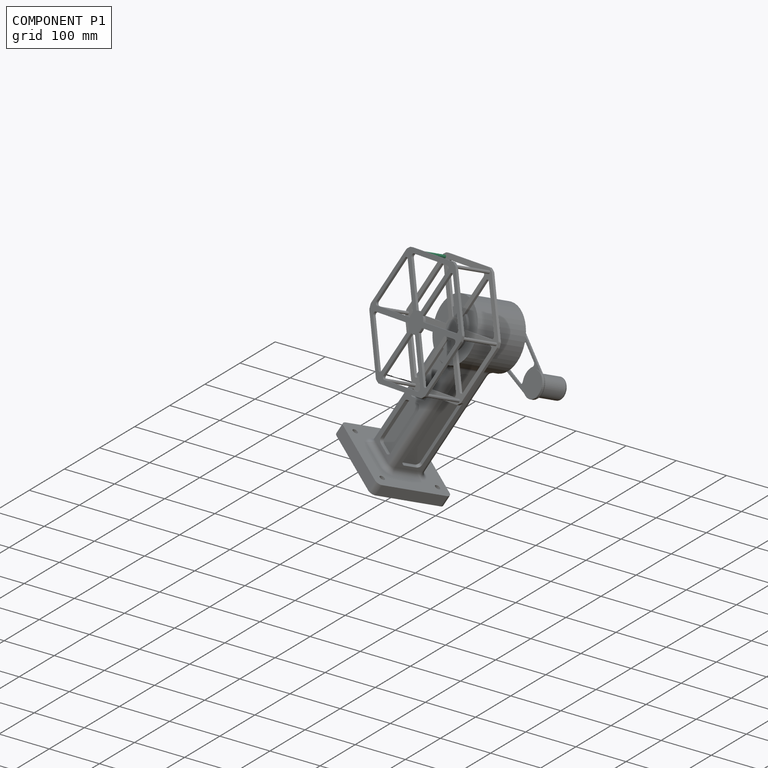
[diagram: component P1 — assembled]
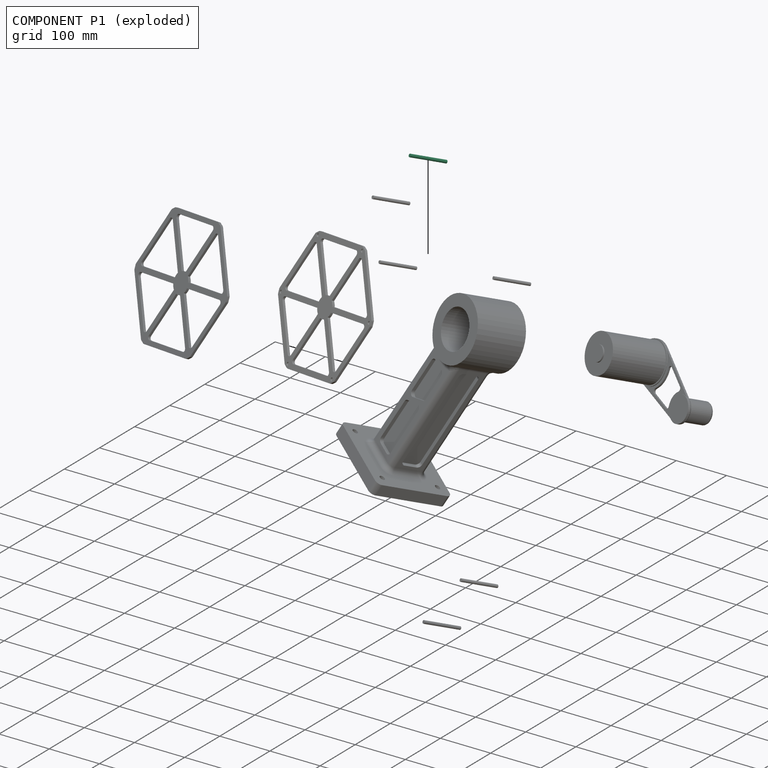
[diagram: component P1 — exploded]
COMPONENT P1 — same part as P0 (CADFS 00651217); its construction recipe is shown at P0.
Held by: FASTENED mate "Fest 3" to P3.
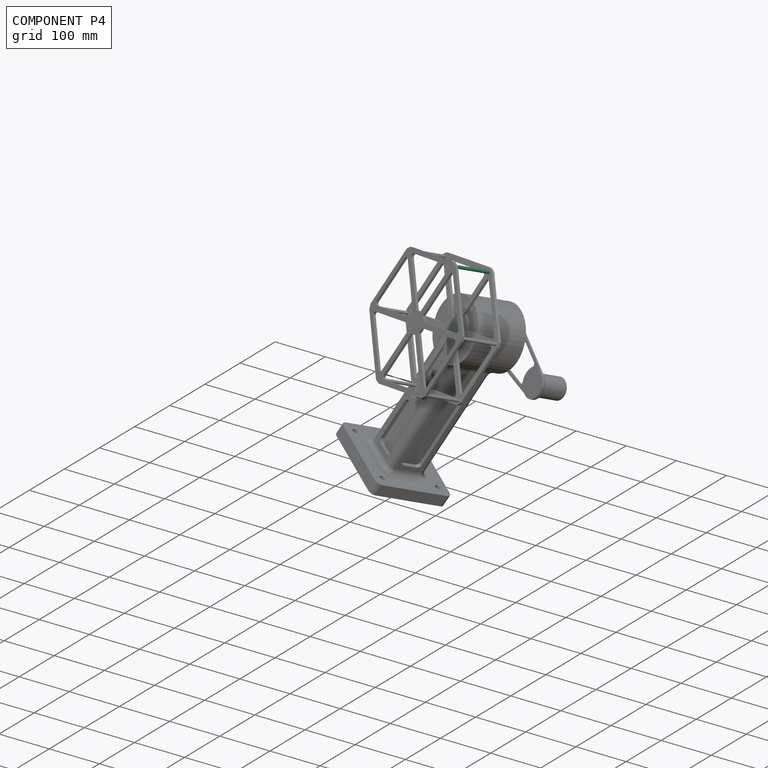
[diagram: component P4 — assembled]
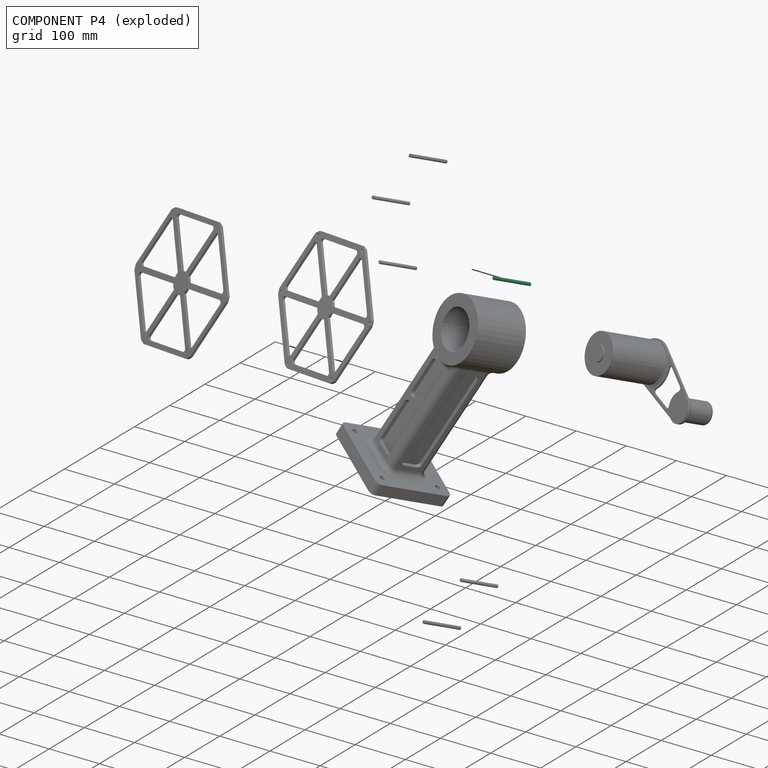
[diagram: component P4 — exploded]
COMPONENT P4 — same part as P0 (CADFS 00651217); its construction recipe is shown at P0.
Held by: FASTENED mate "Fest 2" to P3.
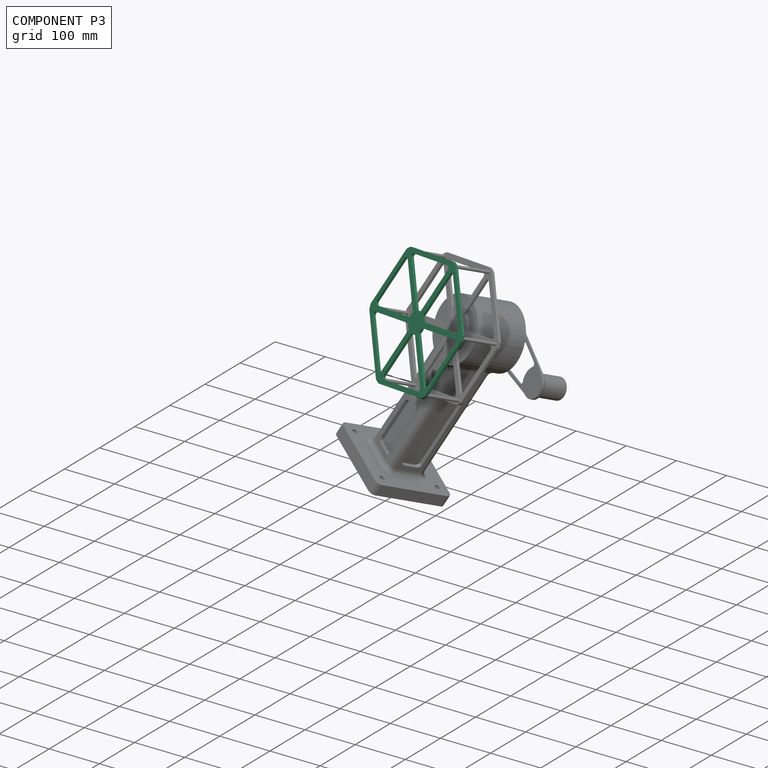
[diagram: component P3 — assembled]
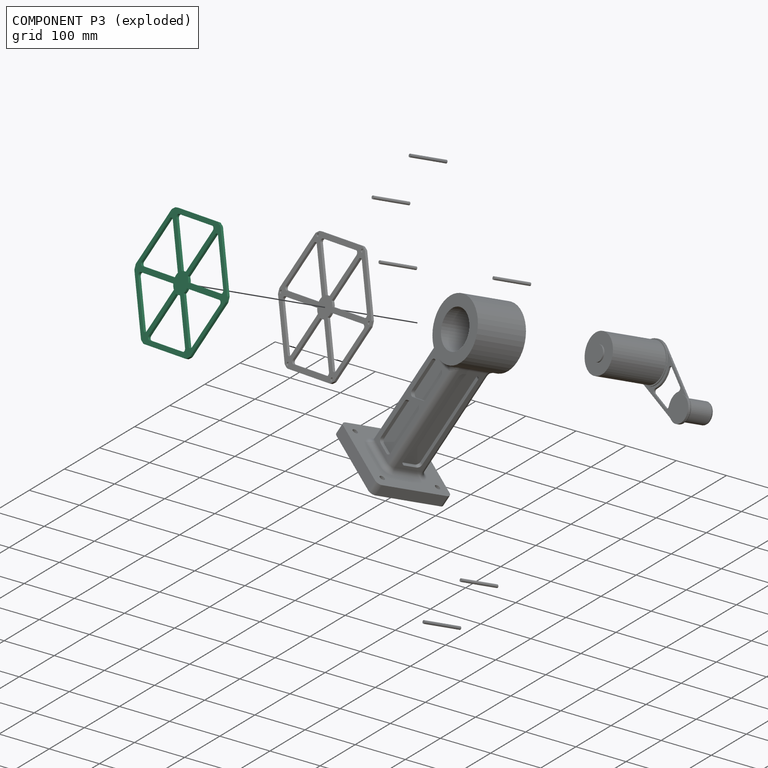
[diagram: component P3 — exploded]
COMPONENT P3 — recipe-attached (CADFS 00651216, mesh-verified: the recipe's output STEP matches this component's geometry to below the mesh-comparison resolution (tessellation chordal tolerance ~0.521 mm)).
Held by: FASTENED mate "Fest 3" to P1; FASTENED mate "Fest 2" to P4; FASTENED mate "Fest 5" to P8; FASTENED mate "Fest 4" to P7; FASTENED mate "Fest 6" to P2; FASTENED mate "Fest 1" to P0.
Construction recipe (FeatureScript — the CAD program that rebuilds this solid; sketch coordinates are in the units given by the * unit suffixes, e.g. mm):

FeatureScript 1511;
import(path : "onshape/std/geometry.fs", version : "1511.0");
import(path : "onshape/std/common.fs", version : "1511.0");
const mm = millimeter;
const VERTEX = EntityType.VERTEX;
const EDGE = EntityType.EDGE;
const FACE = EntityType.FACE;
const BODY = EntityType.BODY;
function v(x, y){return vector(x, y);}
function OD(order){return orderDisambiguation(order);}
function OSD(set){return originalSetDisambiguation(set);}
function TD(topology){return topologyDisambiguation(topology);}
function TDD(query){return trueDependencyDisambiguation(query);}
function sQuery(a, b, c) {return sketchEntityQuery(a, b, c);}

annotation { "Feature Type Name" : "Feature", "Feature Type Description" : "" }
export const myFeature = defineFeature(function(context is Context, id is Id, definition is map)
    precondition{}
    {
        {
            var Q0;
            Q0=qCreatedBy(makeId("Top.planeOp"),FACE);
            var sketch = newSketch(context, id + "F0", { "sketchPlane" : qUnion([Q0])});
            skCircle(sketch, "E0", {"center": v(0, 0) * mm, "radius": 20 * mm});
            skLineSegment(sketch, "E1", {"start": v(-20, 0) * mm, "end": v(20, 0) * mm, "construction": true});
            skLineSegment(sketch, "E2", {"start": v(0, 0) * mm, "end": v(-10, 17.32) * mm, "construction": true});
            skLineSegment(sketch, "E3", {"start": v(0, 0) * mm, "end": v(10, 17.32) * mm, "construction": true});
            skLineSegment(sketch, "E4", {"start": v(0, 0) * mm, "end": v(-10, -17.32) * mm, "construction": true});
            skLineSegment(sketch, "E5", {"start": v(0, 0) * mm, "end": v(10, -17.32) * mm, "construction": true});
            skLineSegment(sketch, "E6", {"start": v(-20, 0) * mm, "end": v(-120, 0) * mm, "construction": true});
            skLineSegment(sketch, "E7", {"start": v(-10, 17.32) * mm, "end": v(-60, 103.92) * mm, "construction": true});
            skLineSegment(sketch, "E8", {"start": v(10, 17.32) * mm, "end": v(60, 103.92) * mm, "construction": true});
            skLineSegment(sketch, "E9", {"start": v(20, 0) * mm, "end": v(120, 0) * mm, "construction": true});
            skLineSegment(sketch, "E10", {"start": v(10, -17.32) * mm, "end": v(60, -103.92) * mm, "construction": true});
            skLineSegment(sketch, "E11", {"start": v(-10, -17.32) * mm, "end": v(-60, -103.92) * mm, "construction": true});
            skLineSegment(sketch, "E12", {"start": v(-120, 5) * mm, "end": v(-19.36, 5) * mm});
            skLineSegment(sketch, "E13", {"start": v(-120, -5) * mm, "end": v(-19.36, -5) * mm});
            skLineSegment(sketch, "E14.1.1", {"start": v(-64.33, -101.42) * mm, "end": v(-14.01, -14.27) * mm});
            skLineSegment(sketch, "E14.1.2", {"start": v(-55.67, -106.42) * mm, "end": v(-5.35, -19.27) * mm});
            skLineSegment(sketch, "E14.2.1", {"start": v(55.67, -106.42) * mm, "end": v(5.35, -19.27) * mm});
            skLineSegment(sketch, "E14.2.2", {"start": v(64.33, -101.42) * mm, "end": v(14.01, -14.27) * mm});
            skLineSegment(sketch, "E14.3.1", {"start": v(120, -5) * mm, "end": v(19.36, -5) * mm});
            skLineSegment(sketch, "E14.3.2", {"start": v(120, 5) * mm, "end": v(19.36, 5) * mm});
            skLineSegment(sketch, "E14.4.1", {"start": v(64.33, 101.42) * mm, "end": v(14.01, 14.27) * mm});
            skLineSegment(sketch, "E14.4.2", {"start": v(55.67, 106.42) * mm, "end": v(5.35, 19.27) * mm});
            skLineSegment(sketch, "E14.5.1", {"start": v(-55.67, 106.42) * mm, "end": v(-5.35, 19.27) * mm});
            skLineSegment(sketch, "E14.5.2", {"start": v(-64.33, 101.42) * mm, "end": v(-14.01, 14.27) * mm});
            skLineSegment(sketch, "E15", {"start": v(-64.33, 101.42) * mm, "end": v(-60, 103.92) * mm});
            skLineSegment(sketch, "E16", {"start": v(-55.67, 106.42) * mm, "end": v(-60, 103.92) * mm});
            skLineSegment(sketch, "E17", {"start": v(55.67, 106.42) * mm, "end": v(60, 103.92) * mm});
            skLineSegment(sketch, "E18", {"start": v(64.33, 101.42) * mm, "end": v(60, 103.92) * mm});
            skLineSegment(sketch, "E19", {"start": v(120, 5) * mm, "end": v(120, -5) * mm});
            skLineSegment(sketch, "E20", {"start": v(64.33, -101.42) * mm, "end": v(55.67, -106.42) * mm});
            skLineSegment(sketch, "E21", {"start": v(-55.67, -106.42) * mm, "end": v(-64.33, -101.42) * mm});
            skLineSegment(sketch, "E22", {"start": v(-120, -5) * mm, "end": v(-120, 5) * mm});
            skLineSegment(sketch, "E23", {"start": v(-64.33, 101.42) * mm, "end": v(-120, 5) * mm});
            skLineSegment(sketch, "E24", {"start": v(-120, -5) * mm, "end": v(-64.33, -101.42) * mm});
            skLineSegment(sketch, "E25", {"start": v(-55.67, -106.42) * mm, "end": v(55.67, -106.42) * mm});
            skLineSegment(sketch, "E26", {"start": v(64.33, -101.42) * mm, "end": v(120, -5) * mm});
            skLineSegment(sketch, "E27", {"start": v(64.33, 101.42) * mm, "end": v(120, 5) * mm});
            skLineSegment(sketch, "E28", {"start": v(-55.67, 106.42) * mm, "end": v(55.67, 106.42) * mm});
            skLineSegment(sketch, "E29", {"start": v(-120, 0) * mm, "end": v(-130, 0) * mm, "construction": true});
            skLineSegment(sketch, "E30", {"start": v(-60, 103.92) * mm, "end": v(-65, 112.58) * mm, "construction": true});
            skLineSegment(sketch, "E31", {"start": v(60, 103.92) * mm, "end": v(65, 112.58) * mm, "construction": true});
            skLineSegment(sketch, "E32", {"start": v(120, 0) * mm, "end": v(130, 0) * mm, "construction": true});
            skLineSegment(sketch, "E33", {"start": v(60, -103.92) * mm, "end": v(65.05, -112.56) * mm, "construction": true});
            skLineSegment(sketch, "E34", {"start": v(-60, -103.92) * mm, "end": v(-65, -112.58) * mm, "construction": true});
            skLineSegment(sketch, "E35", {"start": v(-65, 112.58) * mm, "end": v(-60.67, 115.08) * mm});
            skLineSegment(sketch, "E36", {"start": v(-65, 112.58) * mm, "end": v(-69.33, 110.08) * mm});
            skLineSegment(sketch, "E37.1.0", {"start": v(-130, 0) * mm, "end": v(-130, -5) * mm});
            skLineSegment(sketch, "E37.1.1", {"start": v(-130, 0) * mm, "end": v(-130, 5) * mm});
            skLineSegment(sketch, "E37.2.0", {"start": v(-65, -112.58) * mm, "end": v(-60.67, -115.08) * mm});
            skLineSegment(sketch, "E37.2.1", {"start": v(-65, -112.58) * mm, "end": v(-69.33, -110.08) * mm});
            skLineSegment(sketch, "E37.3.0", {"start": v(65, -112.58) * mm, "end": v(69.33, -110.08) * mm});
            skLineSegment(sketch, "E37.3.1", {"start": v(65, -112.58) * mm, "end": v(60.67, -115.08) * mm});
            skLineSegment(sketch, "E37.4.0", {"start": v(130, 0) * mm, "end": v(130, 5) * mm});
            skLineSegment(sketch, "E37.4.1", {"start": v(130, 0) * mm, "end": v(130, -5) * mm});
            skLineSegment(sketch, "E37.5.0", {"start": v(65, 112.58) * mm, "end": v(60.67, 115.08) * mm});
            skLineSegment(sketch, "E37.5.1", {"start": v(65, 112.58) * mm, "end": v(69.33, 110.08) * mm});
            skLineSegment(sketch, "E38", {"start": v(-69.33, 110.08) * mm, "end": v(-130, 5) * mm});
            skLineSegment(sketch, "E39", {"start": v(-130, -5) * mm, "end": v(-69.33, -110.08) * mm});
            skLineSegment(sketch, "E40", {"start": v(-60.67, -115.08) * mm, "end": v(60.67, -115.08) * mm});
            skLineSegment(sketch, "E41", {"start": v(69.33, -110.08) * mm, "end": v(130, -5) * mm});
            skLineSegment(sketch, "E42", {"start": v(130, 5) * mm, "end": v(69.33, 110.08) * mm});
            skLineSegment(sketch, "E43", {"start": v(60.67, 115.08) * mm, "end": v(-60.67, 115.08) * mm});
            skLineSegment(sketch, "E44", {"start": v(60.67, 115.08) * mm, "end": v(64.33, 101.42) * mm, "construction": true});
            skLineSegment(sketch, "E45", {"start": v(55.67, 106.42) * mm, "end": v(69.33, 110.08) * mm, "construction": true});
            skPoint(sketch, "E46", {"position": v(62.5, 108.25) * mm});
            skCircle(sketch, "E47", {"center": v(62.5, 108.25) * mm, "radius": 3 * mm});
            skCircle(sketch, "E48.1.0", {"center": v(-62.5, 108.25) * mm, "radius": 3 * mm});
            skCircle(sketch, "E48.2.0", {"center": v(-125, 0) * mm, "radius": 3 * mm});
            skCircle(sketch, "E48.3.0", {"center": v(-62.5, -108.25) * mm, "radius": 3 * mm});
            skCircle(sketch, "E48.4.0", {"center": v(62.5, -108.25) * mm, "radius": 3 * mm});
            skCircle(sketch, "E48.5.0", {"center": v(125, 0) * mm, "radius": 3 * mm});
            skSolve(sketch);
        }
        {
            var Q0;
            Q0=makeQuery(id+"F0.imprint","IMPRINT",FACE,{"disambiguationData":[TD([[makeQuery(id+"F0.imprint","IMPRINT",EDGE,{"derivedFrom":sQuery(id+"F0.wireOp",EDGE,"E15")}),1.0]])]});
            extrude(context, id + "F1", {"entities" : qUnion([Q0]), "depth" : 5 * mm, "offsetDistance" : 25 * mm});
        }
        {
            var Q0;
            {var subQ0=sQuery(id+"F0.wireOp",EDGE,"E0");var subQ8=makeQuery(id+"F0.imprint","INTERSECT",VERTEX,{"derivedFrom":[subQ0,sQuery(id+"F0.wireOp",EDGE,"E14.3.2")]});Q0=makeQuery(id+"F0.imprint","IMPRINT",FACE,{"disambiguationData":[TD([[makeQuery(id+"F0.imprint","IMPRINT",EDGE,{"disambiguationData":[TD([[subQ8,-1.0]])],"derivedFrom":subQ0}),1.0]])]});}
            var Q1;
            {var subQ0=sQuery(id+"F0.wireOp",EDGE,"E12");Q1=makeQuery(id+"F0.imprint","IMPRINT",FACE,{"disambiguationData":[TD([[makeQuery(id+"F0.imprint","IMPRINT",EDGE,{"derivedFrom":subQ0}),-1.0]])]});}
            var Q2;
            {var subQ0=sQuery(id+"F0.wireOp",EDGE,"E14.5.1");Q2=makeQuery(id+"F0.imprint","IMPRINT",FACE,{"disambiguationData":[TD([[makeQuery(id+"F0.imprint","IMPRINT",EDGE,{"derivedFrom":subQ0}),-1.0]])]});}
            var Q3;
            {var subQ0=sQuery(id+"F0.wireOp",EDGE,"E14.4.1");Q3=makeQuery(id+"F0.imprint","IMPRINT",FACE,{"disambiguationData":[TD([[makeQuery(id+"F0.imprint","IMPRINT",EDGE,{"derivedFrom":subQ0}),-1.0]])]});}
            var Q4;
            {var subQ0=sQuery(id+"F0.wireOp",EDGE,"E14.3.1");Q4=makeQuery(id+"F0.imprint","IMPRINT",FACE,{"disambiguationData":[TD([[makeQuery(id+"F0.imprint","IMPRINT",EDGE,{"derivedFrom":subQ0}),-1.0]])]});}
            var Q5;
            {var subQ0=sQuery(id+"F0.wireOp",EDGE,"E14.2.1");Q5=makeQuery(id+"F0.imprint","IMPRINT",FACE,{"disambiguationData":[TD([[makeQuery(id+"F0.imprint","IMPRINT",EDGE,{"derivedFrom":subQ0}),-1.0]])]});}
            var Q6;
            {var subQ0=sQuery(id+"F0.wireOp",EDGE,"E14.1.1");Q6=makeQuery(id+"F0.imprint","IMPRINT",FACE,{"disambiguationData":[TD([[makeQuery(id+"F0.imprint","IMPRINT",EDGE,{"derivedFrom":subQ0}),-1.0]])]});}
            extrude(context, id + "F2", {"entities" : qUnion([Q0, Q1, Q2, Q3, Q4, Q5, Q6]), "operationType" : NewBodyOperationType.ADD, "depth" : 5 * mm, "offsetDistance" : 25 * mm});
        }
        {
            var Q0;
            Q0=makeQuery(id+"F1.opExtrude","SWEPT_EDGE",EDGE,{"disambiguationData":[OSD([sQuery(id+"F0.wireOp",EDGE,"E37.2.0"),sQuery(id+"F0.wireOp",EDGE,"E40")])]});
            fillet(context, id + "F3", {"entities" : qUnion([Q0]), "radius" : 5 * mm, "tangentPropagation" : true, "allowEdgeOverflow" : false});
        }
        {
            var Q0;
            Q0=makeQuery(id+"F1.opExtrude","SWEPT_EDGE",EDGE,{"disambiguationData":[OSD([sQuery(id+"F0.wireOp",EDGE,"E37.2.1"),sQuery(id+"F0.wireOp",EDGE,"E39")])]});
            var Q1;
            Q1=makeQuery(id+"F1.opExtrude","SWEPT_EDGE",EDGE,{"disambiguationData":[OSD([sQuery(id+"F0.wireOp",EDGE,"E37.3.1"),sQuery(id+"F0.wireOp",EDGE,"E40")])]});
            var Q2;
            Q2=makeQuery(id+"F1.opExtrude","SWEPT_EDGE",EDGE,{"disambiguationData":[OSD([sQuery(id+"F0.wireOp",EDGE,"E37.3.0"),sQuery(id+"F0.wireOp",EDGE,"E41")])]});
            var Q3;
            Q3=makeQuery(id+"F1.opExtrude","SWEPT_EDGE",EDGE,{"disambiguationData":[OSD([sQuery(id+"F0.wireOp",EDGE,"E37.4.1"),sQuery(id+"F0.wireOp",EDGE,"E41")])]});
            var Q4;
            Q4=makeQuery(id+"F1.opExtrude","SWEPT_EDGE",EDGE,{"disambiguationData":[OSD([sQuery(id+"F0.wireOp",EDGE,"E37.4.0"),sQuery(id+"F0.wireOp",EDGE,"E42")])]});
            var Q5;
            Q5=makeQuery(id+"F1.opExtrude","SWEPT_EDGE",EDGE,{"disambiguationData":[OSD([sQuery(id+"F0.wireOp",EDGE,"E37.5.1"),sQuery(id+"F0.wireOp",EDGE,"E42")])]});
            var Q6;
            Q6=makeQuery(id+"F1.opExtrude","SWEPT_EDGE",EDGE,{"disambiguationData":[OSD([sQuery(id+"F0.wireOp",EDGE,"E37.5.0"),sQuery(id+"F0.wireOp",EDGE,"E43")])]});
            var Q7;
            Q7=makeQuery(id+"F1.opExtrude","SWEPT_EDGE",EDGE,{"disambiguationData":[OSD([sQuery(id+"F0.wireOp",EDGE,"E35"),sQuery(id+"F0.wireOp",EDGE,"E43")])]});
            var Q8;
            Q8=makeQuery(id+"F1.opExtrude","SWEPT_EDGE",EDGE,{"disambiguationData":[OSD([sQuery(id+"F0.wireOp",EDGE,"E36"),sQuery(id+"F0.wireOp",EDGE,"E38")])]});
            var Q9;
            Q9=makeQuery(id+"F1.opExtrude","SWEPT_EDGE",EDGE,{"disambiguationData":[OSD([sQuery(id+"F0.wireOp",EDGE,"E37.1.1"),sQuery(id+"F0.wireOp",EDGE,"E38")])]});
            var Q10;
            Q10=makeQuery(id+"F1.opExtrude","SWEPT_EDGE",EDGE,{"disambiguationData":[OSD([sQuery(id+"F0.wireOp",EDGE,"E37.1.0"),sQuery(id+"F0.wireOp",EDGE,"E39")])]});
            fillet(context, id + "F4", {"entities" : qUnion([Q0, Q1, Q2, Q3, Q4, Q5, Q6, Q7, Q8, Q9, Q10]), "radius" : 5 * mm, "tangentPropagation" : true, "allowEdgeOverflow" : false});
        }
        {
            var Q0;
            Q0=makeQuery(id+"F0.imprint","IMPRINT",FACE,{"disambiguationData":[TD([[makeQuery(id+"F0.imprint","IMPRINT",EDGE,{"derivedFrom":sQuery(id+"F0.wireOp",EDGE,"E48.2.0")}),1.0]])]});
            extrude(context, id + "F5", {"entities" : qUnion([Q0]), "operationType" : NewBodyOperationType.ADD, "depth" : 2 * mm, "offsetDistance" : 25 * mm});
        }
        {
            var Q0;
            Q0=makeQuery(id+"F0.imprint","IMPRINT",FACE,{"disambiguationData":[TD([[makeQuery(id+"F0.imprint","IMPRINT",EDGE,{"derivedFrom":sQuery(id+"F0.wireOp",EDGE,"E48.1.0")}),1.0]])]});
            extrude(context, id + "F6", {"entities" : qUnion([Q0]), "operationType" : NewBodyOperationType.ADD, "depth" : 2 * mm, "offsetDistance" : 25 * mm});
        }
        {
            var Q0;
            Q0=makeQuery(id+"F0.imprint","IMPRINT",FACE,{"disambiguationData":[TD([[makeQuery(id+"F0.imprint","IMPRINT",EDGE,{"derivedFrom":sQuery(id+"F0.wireOp",EDGE,"E47")}),1.0]])]});
            extrude(context, id + "F7", {"entities" : qUnion([Q0]), "operationType" : NewBodyOperationType.ADD, "depth" : 2 * mm, "offsetDistance" : 25 * mm});
        }
        {
            var Q0;
            Q0=makeQuery(id+"F0.imprint","IMPRINT",FACE,{"disambiguationData":[TD([[makeQuery(id+"F0.imprint","IMPRINT",EDGE,{"derivedFrom":sQuery(id+"F0.wireOp",EDGE,"E48.5.0")}),1.0]])]});
            extrude(context, id + "F8", {"entities" : qUnion([Q0]), "operationType" : NewBodyOperationType.ADD, "depth" : 2 * mm, "offsetDistance" : 25 * mm});
        }
        {
            var Q0;
            Q0=makeQuery(id+"F0.imprint","IMPRINT",FACE,{"disambiguationData":[TD([[makeQuery(id+"F0.imprint","IMPRINT",EDGE,{"derivedFrom":sQuery(id+"F0.wireOp",EDGE,"E48.4.0")}),1.0]])]});
            extrude(context, id + "F9", {"entities" : qUnion([Q0]), "operationType" : NewBodyOperationType.ADD, "depth" : 2 * mm, "offsetDistance" : 25 * mm});
        }
        {
            var Q0;
            Q0=makeQuery(id+"F0.imprint","IMPRINT",FACE,{"disambiguationData":[TD([[makeQuery(id+"F0.imprint","IMPRINT",EDGE,{"derivedFrom":sQuery(id+"F0.wireOp",EDGE,"E48.3.0")}),1.0]])]});
            extrude(context, id + "F10", {"entities" : qUnion([Q0]), "operationType" : NewBodyOperationType.ADD, "depth" : 2 * mm, "offsetDistance" : 25 * mm});
        }
        {
            var Q0;
            {var subQ0=sQuery(id+"F0.wireOp",EDGE,"E24");var subQ1=sQuery(id+"F0.wireOp",EDGE,"E21");var subQ2=sQuery(id+"F0.wireOp",EDGE,"E14.1.1");Q0=makeQuery(id+"F2.boolean.opBoolean","MERGE",EDGE,{"derivedFrom":[makeQuery(id+"F1.opExtrude","SWEPT_EDGE",EDGE,{"disambiguationData":[OSD([subQ2,subQ1,subQ0])]}),makeQuery(id+"F2.opExtrude","SWEPT_EDGE",EDGE,{"disambiguationData":[OSD([subQ2,subQ1,subQ0])]})]});}
            var Q1;
            {var subQ0=sQuery(id+"F0.wireOp",EDGE,"E24");var subQ1=sQuery(id+"F0.wireOp",EDGE,"E22");var subQ2=sQuery(id+"F0.wireOp",EDGE,"E13");Q1=makeQuery(id+"F2.boolean.opBoolean","MERGE",EDGE,{"derivedFrom":[makeQuery(id+"F1.opExtrude","SWEPT_EDGE",EDGE,{"disambiguationData":[OSD([subQ2,subQ1,subQ0])]}),makeQuery(id+"F2.opExtrude","SWEPT_EDGE",EDGE,{"disambiguationData":[OSD([subQ2,subQ1,subQ0])]})]});}
            var Q2;
            {var subQ0=sQuery(id+"F0.wireOp",EDGE,"E23");var subQ1=sQuery(id+"F0.wireOp",EDGE,"E22");var subQ2=sQuery(id+"F0.wireOp",EDGE,"E12");Q2=makeQuery(id+"F2.boolean.opBoolean","MERGE",EDGE,{"derivedFrom":[makeQuery(id+"F1.opExtrude","SWEPT_EDGE",EDGE,{"disambiguationData":[OSD([subQ2,subQ1,subQ0])]}),makeQuery(id+"F2.opExtrude","SWEPT_EDGE",EDGE,{"disambiguationData":[OSD([subQ2,subQ1,subQ0])]})]});}
            var Q3;
            {var subQ0=sQuery(id+"F0.wireOp",EDGE,"E23");var subQ1=sQuery(id+"F0.wireOp",EDGE,"E15");var subQ2=sQuery(id+"F0.wireOp",EDGE,"E14.5.2");Q3=makeQuery(id+"F2.boolean.opBoolean","MERGE",EDGE,{"derivedFrom":[makeQuery(id+"F1.opExtrude","SWEPT_EDGE",EDGE,{"disambiguationData":[OSD([subQ2,subQ1,subQ0])]}),makeQuery(id+"F2.opExtrude","SWEPT_EDGE",EDGE,{"disambiguationData":[OSD([subQ2,subQ1,subQ0])]})]});}
            var Q4;
            {var subQ0=sQuery(id+"F0.wireOp",EDGE,"E28");var subQ1=sQuery(id+"F0.wireOp",EDGE,"E16");var subQ2=sQuery(id+"F0.wireOp",EDGE,"E14.5.1");Q4=makeQuery(id+"F2.boolean.opBoolean","MERGE",EDGE,{"derivedFrom":[makeQuery(id+"F1.opExtrude","SWEPT_EDGE",EDGE,{"disambiguationData":[OSD([subQ2,subQ1,subQ0])]}),makeQuery(id+"F2.opExtrude","SWEPT_EDGE",EDGE,{"disambiguationData":[OSD([subQ2,subQ1,subQ0])]})]});}
            var Q5;
            {var subQ0=sQuery(id+"F0.wireOp",EDGE,"E28");var subQ1=sQuery(id+"F0.wireOp",EDGE,"E17");var subQ2=sQuery(id+"F0.wireOp",EDGE,"E14.4.2");Q5=makeQuery(id+"F2.boolean.opBoolean","MERGE",EDGE,{"derivedFrom":[makeQuery(id+"F1.opExtrude","SWEPT_EDGE",EDGE,{"disambiguationData":[OSD([subQ2,subQ1,subQ0])]}),makeQuery(id+"F2.opExtrude","SWEPT_EDGE",EDGE,{"disambiguationData":[OSD([subQ2,subQ1,subQ0])]})]});}
            var Q6;
            {var subQ0=sQuery(id+"F0.wireOp",EDGE,"E27");var subQ1=sQuery(id+"F0.wireOp",EDGE,"E18");var subQ2=sQuery(id+"F0.wireOp",EDGE,"E14.4.1");Q6=makeQuery(id+"F2.boolean.opBoolean","MERGE",EDGE,{"derivedFrom":[makeQuery(id+"F1.opExtrude","SWEPT_EDGE",EDGE,{"disambiguationData":[OSD([subQ2,subQ1,subQ0])]}),makeQuery(id+"F2.opExtrude","SWEPT_EDGE",EDGE,{"disambiguationData":[OSD([subQ2,subQ1,subQ0])]})]});}
            var Q7;
            {var subQ0=sQuery(id+"F0.wireOp",EDGE,"E27");var subQ1=sQuery(id+"F0.wireOp",EDGE,"E19");var subQ2=sQuery(id+"F0.wireOp",EDGE,"E14.3.2");Q7=makeQuery(id+"F2.boolean.opBoolean","MERGE",EDGE,{"derivedFrom":[makeQuery(id+"F1.opExtrude","SWEPT_EDGE",EDGE,{"disambiguationData":[OSD([subQ2,subQ1,subQ0])]}),makeQuery(id+"F2.opExtrude","SWEPT_EDGE",EDGE,{"disambiguationData":[OSD([subQ2,subQ1,subQ0])]})]});}
            var Q8;
            {var subQ0=sQuery(id+"F0.wireOp",EDGE,"E26");var subQ1=sQuery(id+"F0.wireOp",EDGE,"E19");var subQ2=sQuery(id+"F0.wireOp",EDGE,"E14.3.1");Q8=makeQuery(id+"F2.boolean.opBoolean","MERGE",EDGE,{"derivedFrom":[makeQuery(id+"F1.opExtrude","SWEPT_EDGE",EDGE,{"disambiguationData":[OSD([subQ2,subQ1,subQ0])]}),makeQuery(id+"F2.opExtrude","SWEPT_EDGE",EDGE,{"disambiguationData":[OSD([subQ2,subQ1,subQ0])]})]});}
            var Q9;
            {var subQ0=sQuery(id+"F0.wireOp",EDGE,"E26");var subQ1=sQuery(id+"F0.wireOp",EDGE,"E20");var subQ2=sQuery(id+"F0.wireOp",EDGE,"E14.2.2");Q9=makeQuery(id+"F2.boolean.opBoolean","MERGE",EDGE,{"derivedFrom":[makeQuery(id+"F1.opExtrude","SWEPT_EDGE",EDGE,{"disambiguationData":[OSD([subQ2,subQ1,subQ0])]}),makeQuery(id+"F2.opExtrude","SWEPT_EDGE",EDGE,{"disambiguationData":[OSD([subQ2,subQ1,subQ0])]})]});}
            var Q10;
            {var subQ0=sQuery(id+"F0.wireOp",EDGE,"E25");var subQ1=sQuery(id+"F0.wireOp",EDGE,"E20");var subQ2=sQuery(id+"F0.wireOp",EDGE,"E14.2.1");Q10=makeQuery(id+"F2.boolean.opBoolean","MERGE",EDGE,{"derivedFrom":[makeQuery(id+"F1.opExtrude","SWEPT_EDGE",EDGE,{"disambiguationData":[OSD([subQ2,subQ1,subQ0])]}),makeQuery(id+"F2.opExtrude","SWEPT_EDGE",EDGE,{"disambiguationData":[OSD([subQ2,subQ1,subQ0])]})]});}
            var Q11;
            {var subQ0=sQuery(id+"F0.wireOp",EDGE,"E25");var subQ1=sQuery(id+"F0.wireOp",EDGE,"E21");var subQ2=sQuery(id+"F0.wireOp",EDGE,"E14.1.2");Q11=makeQuery(id+"F2.boolean.opBoolean","MERGE",EDGE,{"derivedFrom":[makeQuery(id+"F1.opExtrude","SWEPT_EDGE",EDGE,{"disambiguationData":[OSD([subQ2,subQ1,subQ0])]}),makeQuery(id+"F2.opExtrude","SWEPT_EDGE",EDGE,{"disambiguationData":[OSD([subQ2,subQ1,subQ0])]})]});}
            fillet(context, id + "F11", {"entities" : qUnion([Q0, Q1, Q2, Q3, Q4, Q5, Q6, Q7, Q8, Q9, Q10, Q11]), "radius" : 5 * mm, "tangentPropagation" : true, "allowEdgeOverflow" : false});
        }
    });
PROVENANCE & LICENSES
Assembly (occurrences, transforms, mates, per-part STEP geometry): AutoMate dataset, Zenodo record 7776208, CC0.
Construction recipes: CADFS (HuggingFace VladPyatov/CADFS, CC-BY-4.0, layered over the ABC dataset), FeatureScript reconstruction programs keyed by ABC model id.
Join: ABC meta listings map ABC model id -> Onshape documentId; within a shared document, parts are matched by geometric signature (bounding-box dims + volume at 0.1% relative tolerance, exact B-rep face/solid counts).
Verification: 8 of this assembly's 10 components carry a recipe attachment, and every attachment is mesh-verified: the CADFS STEP and the AutoMate member STEP were compared as meshes in their shared local frame (symmetric sampled-point-to-mesh distance); worst across the 8 attachments: below the mesh-comparison resolution (tessellation chordal tolerance ~0.525 mm) on a 350 mm part.
Renders: orthographic iso camera (az 35 / el 25); the floor grid conveys scale (grid pitch printed in each image; no ruler). In the exploded view each component is displaced by its stored offset vector: the offsets alone carry the explosion direction (mate normal/axis signs are not orientation cues and do not encode it), and separation distances are assigned per mate-chain, not proportionally to assembly-order depth.
